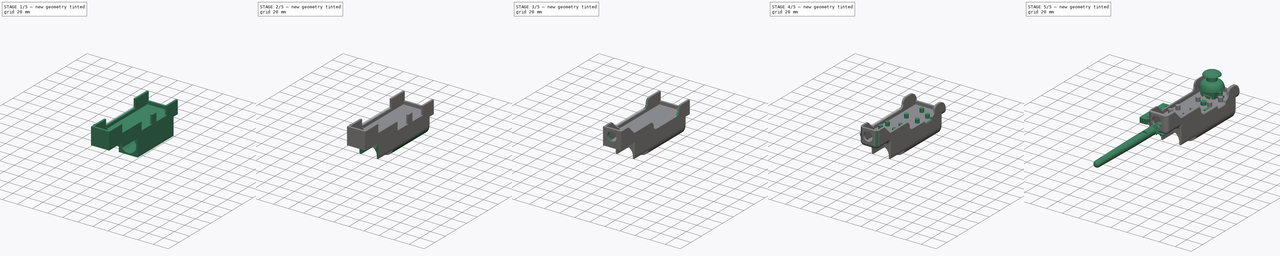
[diagram: build sequence overview — one tinted view per stage of 5, left to right]
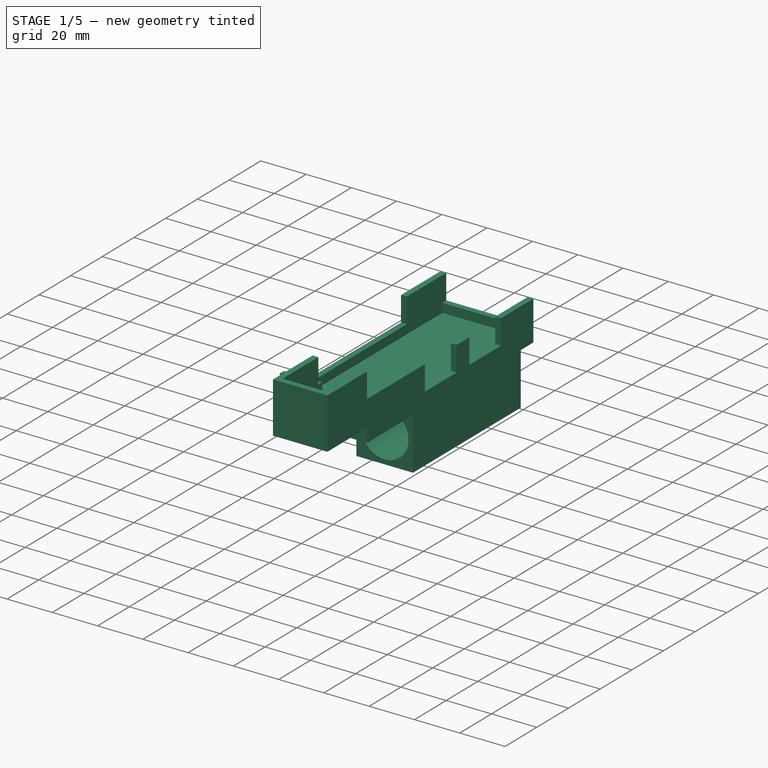
[diagram: stage 1 of 5 — iso view after this stage's code; geometry added in this stage tinted green]
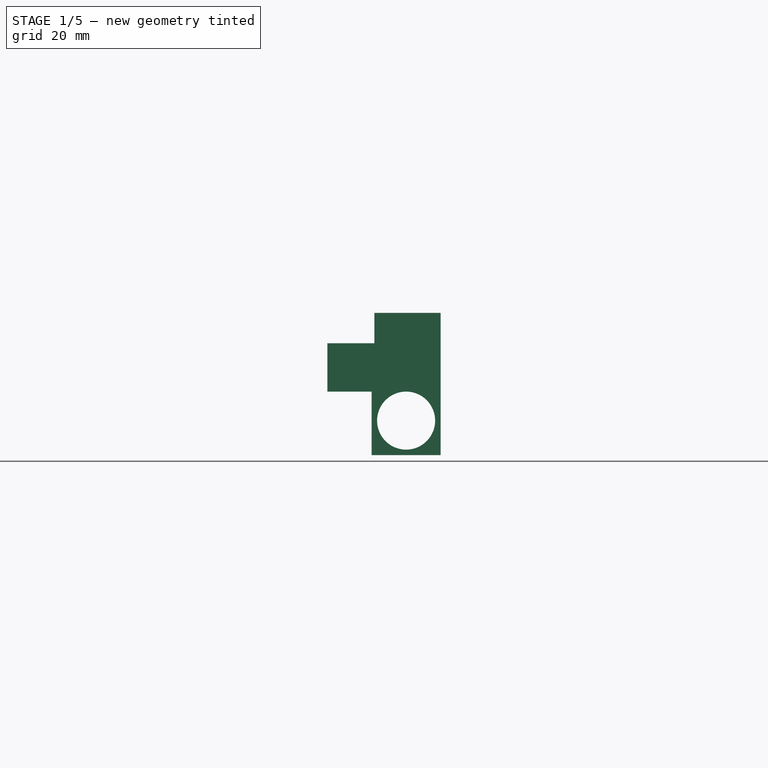
[diagram: stage 1 of 5 — front view after this stage's code; geometry added in this stage tinted green]
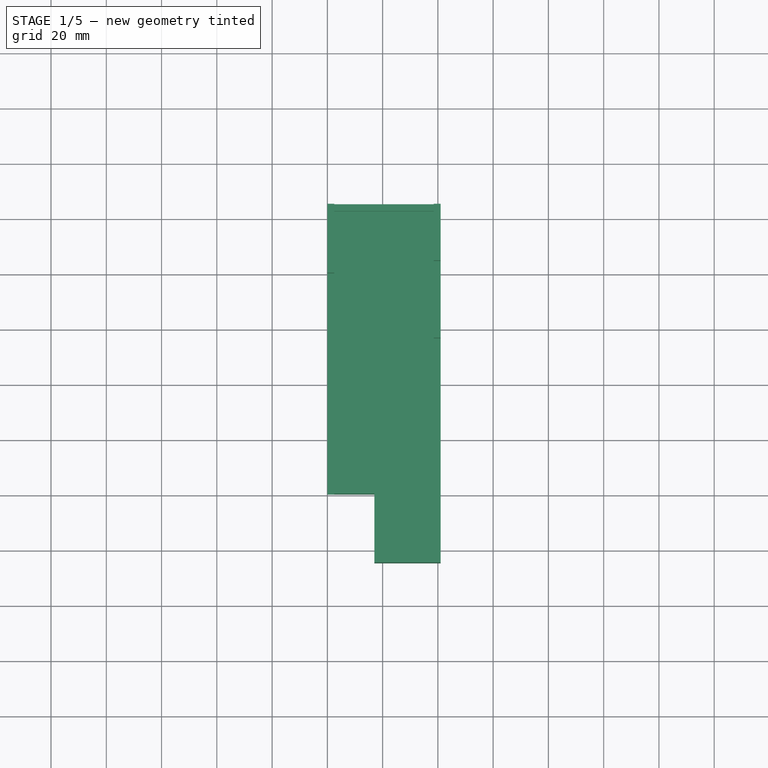
[diagram: stage 1 of 5 — top view after this stage's code; geometry added in this stage tinted green]
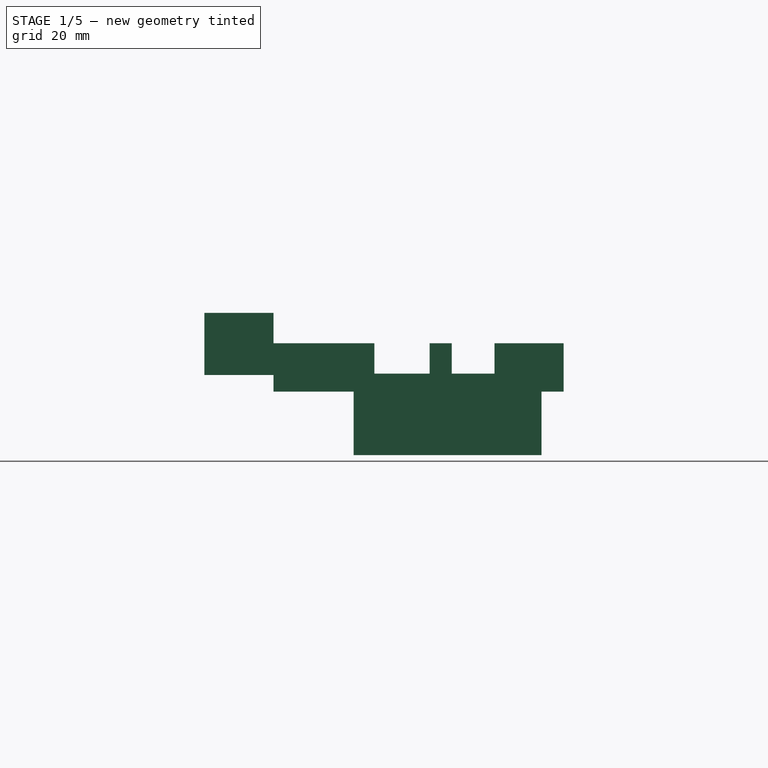
[diagram: stage 1 of 5 — right view after this stage's code; geometry added in this stage tinted green]
FCSTD DOCUMENT  (FreeCAD 0.19R)
Label: Transmitter Case V2
License: All rights reserved
LicenseURL: http://en.wikipedia.org/wiki/All_rights_reserved
objects: App::Link×54, Part::Feature×26, PartDesign::Fillet×21, Sketcher::SketchObject×14, App::Part×9, PartDesign::Pad×9, PartDesign::Pocket×9, PartDesign::Chamfer×2, PartDesign::CoordinateSystem×1, Part::MultiFuse×1, PartDesign::Body×1
note: 125 computed .brp shape members not serialized (recipe doc carries the construction recipe); baked Part::Feature solids carry a one-line shape summary decoded from their .brp

FEATURE [Sketcher::SketchObject] Sketch
  FullyConstrained = true
  MapMode = 5
  Support = -> [XY_Plane]
  sketch-geometry (4):
    g0: LineSegment StartX=0 StartY=0 StartZ=0 EndX=41 EndY=0 EndZ=0
    g1: LineSegment StartX=41 StartY=0 StartZ=0 EndX=41 EndY=105 EndZ=0
    g2: LineSegment StartX=41 StartY=105 StartZ=0 EndX=0 EndY=105 EndZ=0
    g3: LineSegment StartX=0 StartY=105 StartZ=0 EndX=0 EndY=0 EndZ=0
  constraints (11):
    c: Coincident(g0,g1)
    c: Coincident(g1,g2)
    c: Coincident(g2,g3)
    c: Coincident(g3,g0)
    c: Horizontal(g0)
    c: Horizontal(g2)
    c: Vertical(g1)
    c: Vertical(g3)
    c: Coincident(g0,g-1)
    c: Distance(g2) = 41
    c: Distance(g1) = 105
FEATURE [PartDesign::Pad] Pad
  Direction = (1,1,1)
  Length = 2.5
  Length2 = 100
  Profile = -> Sketch
  Type = 0
FEATURE [Sketcher::SketchObject] Sketch001
  ExternalGeometry = -> [Pad]
  FullyConstrained = true
  MapMode = 5
  Placement = pos=(0,0,2.5) rot=(0,0,1;0rad)
  Support = -> [Pad]
  sketch-geometry (8):
    g0: LineSegment StartX=0 StartY=105 StartZ=0 EndX=41 EndY=105 EndZ=0
    g1: LineSegment StartX=41 StartY=105 StartZ=0 EndX=41 EndY=0 EndZ=0
    g2: LineSegment StartX=41 StartY=0 StartZ=0 EndX=0 EndY=0 EndZ=0
    g3: LineSegment StartX=0 StartY=0 StartZ=0 EndX=0 EndY=105 EndZ=0
    g4: LineSegment StartX=2.5 StartY=102.5 StartZ=0 EndX=38.5 EndY=102.5 EndZ=0
    g5: LineSegment StartX=38.5 StartY=102.5 StartZ=0 EndX=38.5 EndY=2.5 EndZ=0
    g6: LineSegment StartX=38.5 StartY=2.5 StartZ=0 EndX=2.5 EndY=2.5 EndZ=0
    g7: LineSegment StartX=2.5 StartY=2.5 StartZ=0 EndX=2.5 EndY=102.5 EndZ=0
  constraints (22):
    c: Coincident(g0,g1)
    c: Coincident(g1,g2)
    c: Coincident(g2,g3)
    c: Coincident(g3,g0)
    c: Horizontal(g0)
    c: Horizontal(g2)
    c: Vertical(g1)
    c: Vertical(g3)
    c: Coincident(g0,g-3)
    c: Coincident(g1,g-4)
    c: Coincident(g4,g5)
    c: Coincident(g5,g6)
    c: Coincident(g6,g7)
    c: Coincident(g7,g4)
    c: Horizontal(g4)
    c: Horizontal(g6)
    c: Vertical(g5)
    c: Vertical(g7)
    c: Distance(g4,g1) = 2.5
    c: Distance(g4,g0) = 2.5
    c: Distance(g6,g2) = 2.5
    c: Distance(g6,g3) = 2.5
FEATURE [PartDesign::Pad] Pad001
  BaseFeature = -> Pad
  Direction = (1,1,1)
  Length = 15
  Length2 = 100
  Profile = -> Sketch001
  Type = 0
FEATURE [Sketcher::SketchObject] Sketch002
  AttachmentOffset = pos=(0,0,-6) rot=(0,0,1;0rad)
  ExternalGeometry = -> [Pad001]
  FullyConstrained = true
  MapMode = 5
  Placement = pos=(0,0,6) rot=(1,0,0;3.14159rad)
  Support = -> [Pad001]
  sketch-geometry (4):
    g0: LineSegment StartX=17 StartY=0 StartZ=0 EndX=41 EndY=0 EndZ=0
    g1: LineSegment StartX=41 StartY=0 StartZ=0 EndX=41 EndY=25 EndZ=0
    g2: LineSegment StartX=41 StartY=25 StartZ=0 EndX=17 EndY=25 EndZ=0
    g3: LineSegment StartX=17 StartY=25 StartZ=0 EndX=17 EndY=0 EndZ=0
  constraints (11):
    c: Coincident(g0,g1)
    c: Coincident(g1,g2)
    c: Coincident(g2,g3)
    c: Coincident(g3,g0)
    c: Horizontal(g0)
    c: Horizontal(g2)
    c: Vertical(g1)
    c: Vertical(g3)
    c: Coincident(g0,g-3)
    c: Distance(g0) = 24
    c: Distance(g1) = 25
FEATURE [PartDesign::Pad] Pad002
  BaseFeature = -> Pad001
  Direction = (1,1,1)
  Length = 2.5
  Length2 = 100
  Profile = -> Sketch002
  Reversed = true
  Type = 0
FEATURE [Sketcher::SketchObject] Sketch003
  ExternalGeometry = -> [Pad002]
  FullyConstrained = true
  MapMode = 5
  Placement = pos=(0,0,8.5) rot=(0,0,1;0rad)
  Support = -> [Pad002]
  sketch-geometry (8):
    g0: LineSegment StartX=41 StartY=0 StartZ=0 EndX=41 EndY=-25 EndZ=0
    g1: LineSegment StartX=41 StartY=-25 StartZ=0 EndX=17 EndY=-25 EndZ=0
    g2: LineSegment StartX=17 StartY=-25 StartZ=0 EndX=17 EndY=0 EndZ=0
    g3: LineSegment StartX=38.5 StartY=0 StartZ=0 EndX=38.5 EndY=-22.5 EndZ=0
    g4: LineSegment StartX=38.5 StartY=-22.5 StartZ=0 EndX=19.5 EndY=-22.5 EndZ=0
    g5: LineSegment StartX=19.5 StartY=-22.5 StartZ=0 EndX=19.5 EndY=0 EndZ=0
    g6: LineSegment StartX=19.5 StartY=0 StartZ=0 EndX=17 EndY=0 EndZ=0
    g7: LineSegment StartX=38.5 StartY=0 StartZ=0 EndX=41 EndY=0 EndZ=0
  constraints (22):
    c: Coincident(g0,g1)
    c: Coincident(g1,g2)
    c: Horizontal(g1)
    c: Vertical(g0)
    c: Vertical(g2)
    c: Coincident(g0,g-5)
    c: Coincident(g3,g4)
    c: Coincident(g4,g5)
    c: Horizontal(g4)
    c: Vertical(g3)
    c: Vertical(g5)
    c: PointOnObject(g5,g-1)
    c: Distance(g3,g0) = 2.5
    c: Distance(g3,g1) = 2.5
    c: Distance(g4,g2) = 2.5
    c: Coincident(g2,g-3)
    c: PointOnObject(g3,g-1)
    c: Coincident(g6,g5)
    c: Coincident(g6,g2)
    c: Coincident(g7,g3)
    c: Coincident(g7,g0)
    c: Horizontal(g7)
FEATURE [PartDesign::Pad] Pad003
  BaseFeature = -> Pad002
  Direction = (1,1,1)
  Length = 20
  Length2 = 100
  Profile = -> Sketch003
  Type = 0
FEATURE [Sketcher::SketchObject] Sketch004
  ExternalGeometry = -> [Pad003]
  FullyConstrained = true
  MapMode = 5
  Placement = pos=(0,0,17.5) rot=(0,0,1;0rad)
  Support = -> [Pad003]
  sketch-geometry (20):
    g0: LineSegment StartX=0 StartY=80 StartZ=0 EndX=2.5 EndY=80 EndZ=0
    g1: LineSegment StartX=2.5 StartY=80 StartZ=0 EndX=2.5 EndY=0 EndZ=0
    g2: LineSegment StartX=2.5 StartY=0 StartZ=0 EndX=0 EndY=0 EndZ=0
    g3: LineSegment StartX=0 StartY=0 StartZ=0 EndX=0 EndY=80 EndZ=0
    g4: LineSegment StartX=2.5 StartY=102.5 StartZ=0 EndX=38.5 EndY=102.5 EndZ=0
    g5: LineSegment StartX=38.5 StartY=102.5 StartZ=0 EndX=38.5 EndY=105 EndZ=0
    g6: LineSegment StartX=38.5 StartY=105 StartZ=0 EndX=2.5 EndY=105 EndZ=0
    g7: LineSegment StartX=2.5 StartY=105 StartZ=0 EndX=2.5 EndY=102.5 EndZ=0
    g8: LineSegment StartX=38.5 StartY=80.5 StartZ=0 EndX=41 EndY=80.5 EndZ=0
    g9: LineSegment StartX=41 StartY=80.5 StartZ=0 EndX=41 EndY=64.5 EndZ=0
    g10: LineSegment StartX=41 StartY=64.5 StartZ=0 EndX=38.5 EndY=64.5 EndZ=0
    g11: LineSegment StartX=38.5 StartY=64.5 StartZ=0 EndX=38.5 EndY=80.5 EndZ=0
    g12: LineSegment StartX=38.5 StartY=56.5 StartZ=0 EndX=41 EndY=56.5 EndZ=0
    g13: LineSegment StartX=41 StartY=56.5 StartZ=0 EndX=41 EndY=36.5 EndZ=0
    g14: LineSegment StartX=41 StartY=36.5 StartZ=0 EndX=38.5 EndY=36.5 EndZ=0
    g15: LineSegment StartX=38.5 StartY=36.5 StartZ=0 EndX=38.5 EndY=56.5 EndZ=0
    g16: LineSegment StartX=38.5 StartY=0 StartZ=0 EndX=19.5 EndY=0 EndZ=0
    g17: LineSegment StartX=19.5 StartY=0 StartZ=0 EndX=19.5 EndY=2.5 EndZ=0
    g18: LineSegment StartX=19.5 StartY=2.5 StartZ=0 EndX=38.5 EndY=2.5 EndZ=0
    g19: LineSegment StartX=38.5 StartY=2.5 StartZ=0 EndX=38.5 EndY=0 EndZ=0
  constraints (55):
    c: Coincident(g0,g1)
    c: Coincident(g1,g2)
    c: Coincident(g2,g3)
    c: Coincident(g3,g0)
    c: Horizontal(g0)
    c: Horizontal(g2)
    c: Vertical(g1)
    c: Vertical(g3)
    c: PointOnObject(g0,g-4)
    c: PointOnObject(g1,g-5)
    c: PointOnObject(g-3,g1)
    c: Distance(g1) = 80
    c: Coincident(g4,g5)
    c: Coincident(g5,g6)
    c: Coincident(g6,g7)
    c: Coincident(g7,g4)
    c: Horizontal(g6)
    c: Vertical(g5)
    c: Vertical(g7)
    c: Coincident(g4,g-6)
    c: PointOnObject(g5,g-7)
    c: Coincident(g4,g-6)
    c: Coincident(g8,g9)
    c: Coincident(g9,g10)
    c: Coincident(g10,g11)
    c: Coincident(g11,g8)
    c: Horizontal(g8)
    c: Horizontal(g10)
    c: Vertical(g9)
    c: Vertical(g11)
    c: PointOnObject(g8,g-8)
    c: PointOnObject(g9,g-9)
    c: Distance(g9) = 16
    c: Distance(g8,g-9) = 24.5
    c: Coincident(g12,g13)
    c: Coincident(g13,g14)
    c: Coincident(g14,g15)
    c: Coincident(g15,g12)
    c: Horizontal(g12)
    c: Horizontal(g14)
    c: Vertical(g13)
    c: Vertical(g15)
    c: PointOnObject(g12,g-8)
    c: PointOnObject(g13,g-9)
    c: Distance(g13) = 20
    c: Distance(g12,g9) = 8
    c: Coincident(g16,g17)
    c: Coincident(g17,g18)
    c: Coincident(g18,g19)
    c: Coincident(g19,g16)
    c: Horizontal(g18)
    c: Vertical(g17)
    c: Coincident(g16,g-12)
    c: Coincident(g-8,g18)
    c: Coincident(g16,g-10)
FEATURE [Part::Feature] Part__Feature008  label="18650 v4"
  shape: bbox 19.73 x 19.73 x 65 mm, 20 faces (baked)
FEATURE [Part::Feature] Part__Feature009  label="18650 v005"
  shape: bbox 14 x 14 x 0.1 mm, 4 faces (baked)
FEATURE [Part::Feature] Part__Feature010  label="18650 v006"
  shape: bbox 12.02 x 12.02 x 2.321 mm, 37 faces (baked)
FEATURE [Part::Feature] Part__Feature011  label="18650 v007"
  shape: bbox 17 x 17 x 62.7 mm, 3 faces (baked)
FEATURE [App::Part] _8650_v4  label="18650 v008"
  Group = -> [Part__Feature008,Part__Feature009,Part__Feature010,Part__Feature011]
  Origin = -> Origin009
  Placement = pos=(26,92,-19) rot=(-1,0,0;4.71239rad)
FEATURE [PartDesign::Pocket] Pocket
  BaseFeature = -> Pad003
  Length = 11
  Length2 = 100
  Profile = -> Sketch004
  Type = 0
FEATURE [PartDesign::Pocket] Pocket001
  BaseFeature = -> Pocket
  Length = 4
  Length2 = 100
  Profile = -> Pocket [Face27]
  Type = 0
FEATURE [PartDesign::Pad] Pad004
  BaseFeature = -> Pocket001
  Direction = (1,1,1)
  Length = 2
  Length2 = 100
  Profile = -> Pocket001 [Face45]
  Refine = true
  Type = 0
FEATURE [Sketcher::SketchObject] Sketch005
  AttachmentOffset = pos=(0,0,-8) rot=(0,0,1;0rad)
  ExternalGeometry = -> [Pad004]
  FullyConstrained = true
  MapMode = 5
  Placement = pos=(0,97,1.8e-15) rot=(0,0.707107,0.707107;3.14159rad)
  Support = -> [Pad004]
  sketch-geometry (8):
    g0: Circle CenterX=-28.5 CenterY=-10.5 CenterZ=0 NormalX=0 NormalY=0 NormalZ=1 AngleXU=0 Radius=10.5
    g1: LineSegment StartX=-41 StartY=0.2 StartZ=0 EndX=-41 EndY=-23 EndZ=0
    g2: LineSegment StartX=-41 StartY=-23 StartZ=0 EndX=-16 EndY=-23 EndZ=0
    g3: LineSegment StartX=-16 StartY=-23 StartZ=0 EndX=-16 EndY=0.2 EndZ=0
    g4: LineSegment StartX=-18 StartY=-10.5 StartZ=0 EndX=-16 EndY=-10.5 EndZ=0
    g5: LineSegment StartX=-41 StartY=-10.5 StartZ=0 EndX=-39 EndY=-10.5 EndZ=0
    g6: LineSegment StartX=-28.5 StartY=-21 StartZ=0 EndX=-28.5 EndY=-23 EndZ=0
    g7: LineSegment StartX=-41 StartY=0.2 StartZ=0 EndX=-16 EndY=0.2 EndZ=0
  constraints (27):
    c: Diameter(g0) = 21
    c: Tangent(g-3,g0)
    c: Vertical(g1)
    c: Coincident(g2,g1)
    c: Horizontal(g2)
    c: Coincident(g3,g2)
    c: Vertical(g3)
    c: PointOnObject(g4,g0)
    c: PointOnObject(g4,g3)
    c: Horizontal(g4)
    c: Perpendicular(g0,g4)
    c: PointOnObject(g5,g1)
    c: PointOnObject(g5,g0)
    c: Horizontal(g5)
    c: Perpendicular(g0,g5)
    c: Distance(g5) = 2
    c: PointOnObject(g6,g0)
    c: PointOnObject(g6,g2)
    c: Vertical(g6)
    c: Perpendicular(g0,g6)
    c: Equal(g4,g6)
    c: Equal(g6,g5)
    c: Coincident(g7,g3)
    c: Coincident(g1,g7)
    c: Vertical(g1,g-3)
    c: Horizontal(g7)
    c: Distance(g1,g-3) = 0.2
FEATURE [PartDesign::Pad] Pad005
  BaseFeature = -> Pad004
  Direction = (1,1,1)
  Length = 68
  Length2 = 100
  Profile = -> Sketch005
  Reversed = true
  Type = 0
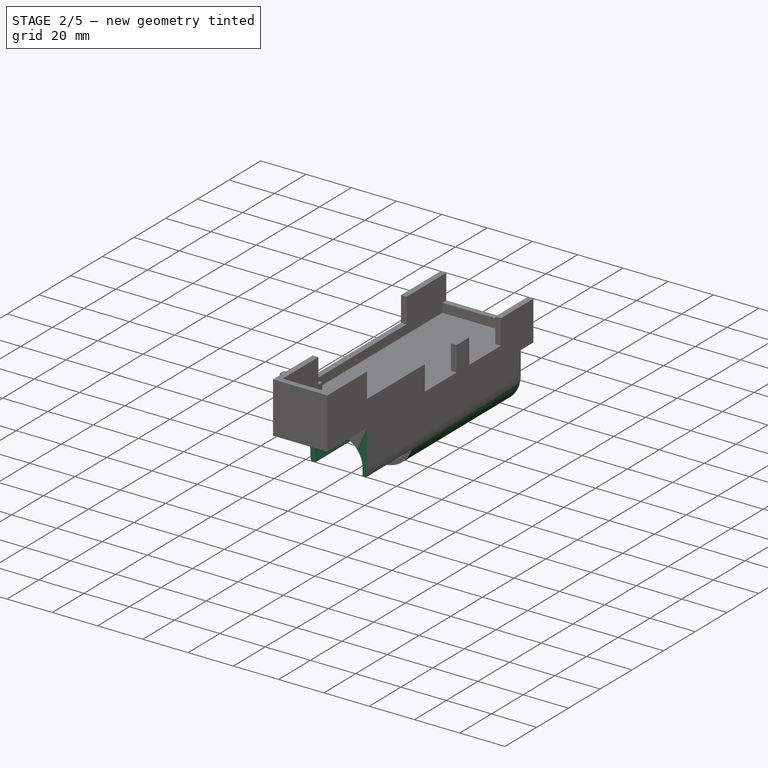
[diagram: stage 2 of 5 — iso view after this stage's code; geometry added in this stage tinted green]
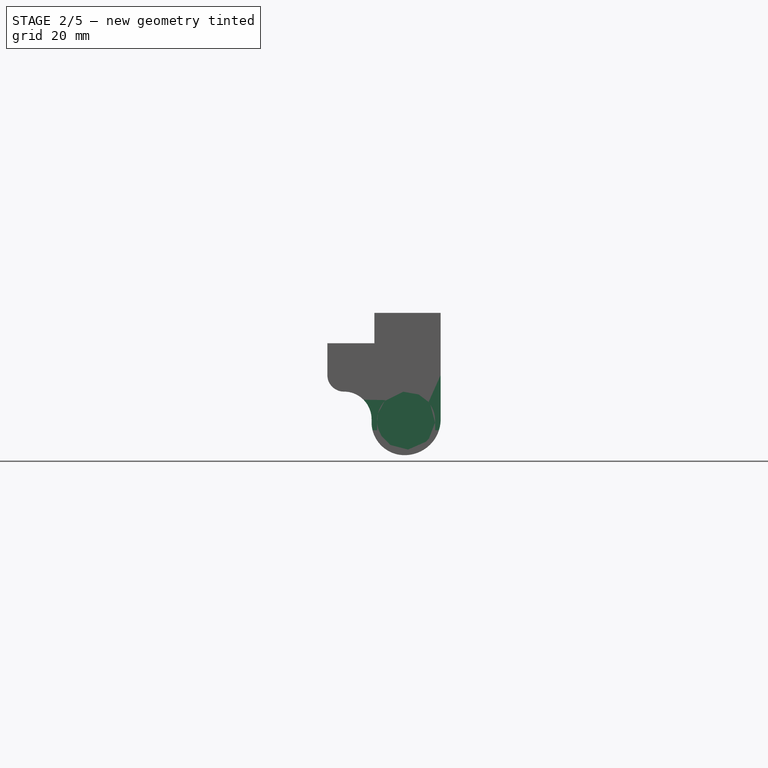
[diagram: stage 2 of 5 — front view after this stage's code; geometry added in this stage tinted green]
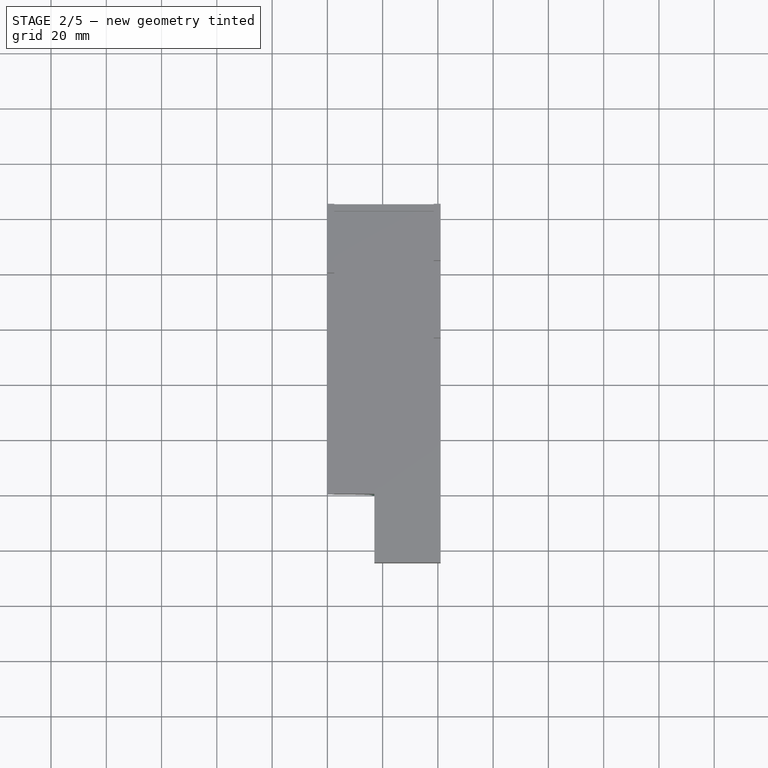
[diagram: stage 2 of 5 — top view after this stage's code; geometry added in this stage tinted green]
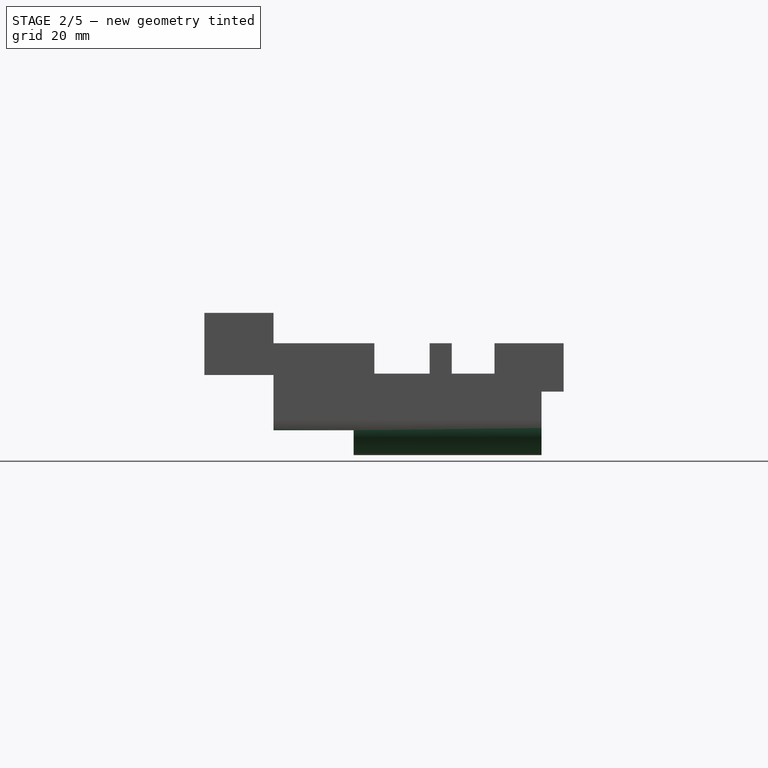
[diagram: stage 2 of 5 — right view after this stage's code; geometry added in this stage tinted green]
FEATURE [Sketcher::SketchObject] Sketch006
  ExternalGeometry = -> [Sketch005]
  FullyConstrained = true
  MapMode = 5
  Placement = pos=(0,97,0) rot=(0,0.707107,0.707107;3.14159rad)
  Support = -> [Pad005]
  sketch-geometry (4):
    g0: LineSegment StartX=-41 StartY=-23 StartZ=0 EndX=-16 EndY=-23 EndZ=0
    g1: LineSegment StartX=-16 StartY=-23 StartZ=0 EndX=-16 EndY=0.2 EndZ=0
    g2: LineSegment StartX=-16 StartY=0.2 StartZ=0 EndX=-41 EndY=0.2 EndZ=0
    g3: LineSegment StartX=-41 StartY=0.2 StartZ=0 EndX=-41 EndY=-23 EndZ=0
  constraints (10):
    c: Coincident(g0,g1)
    c: Coincident(g1,g2)
    c: Coincident(g2,g3)
    c: Coincident(g3,g0)
    c: Horizontal(g0)
    c: Horizontal(g2)
    c: Vertical(g1)
    c: Vertical(g3)
    c: Coincident(g0,g-4)
    c: Coincident(g1,g-3)
FEATURE [PartDesign::Pad] Pad006
  BaseFeature = -> Pad005
  Direction = (1,1,1)
  Length = 2
  Length2 = 100
  Profile = -> Sketch006
  Refine = true
  Reversed = true
  Type = 0
FEATURE [Sketcher::SketchObject] Sketch007
  ExternalGeometry = -> [Pad006]
  FullyConstrained = true
  MapMode = 5
  Placement = pos=(0,0,0) rot=(1,0,0;3.14159rad)
  Support = -> [Pad006]
  sketch-geometry (8):
    g0: LineSegment StartX=41 StartY=-29 StartZ=0 EndX=41 EndY=0 EndZ=0
    g1: LineSegment StartX=41 StartY=0 StartZ=0 EndX=16 EndY=0 EndZ=0
    g2: LineSegment StartX=16 StartY=0 StartZ=0 EndX=16 EndY=-29 EndZ=0
    g3: LineSegment StartX=39 StartY=-29 StartZ=0 EndX=39 EndY=-2 EndZ=0
    g4: LineSegment StartX=39 StartY=-2 StartZ=0 EndX=18 EndY=-2 EndZ=0
    g5: LineSegment StartX=18 StartY=-2 StartZ=0 EndX=18 EndY=-29 EndZ=0
    g6: LineSegment StartX=39 StartY=-29 StartZ=0 EndX=41 EndY=-29 EndZ=0
    g7: LineSegment StartX=18 StartY=-29 StartZ=0 EndX=16 EndY=-29 EndZ=0
  constraints (22):
    c: Coincident(g0,g1)
    c: Coincident(g1,g2)
    c: Horizontal(g1)
    c: Vertical(g0)
    c: Vertical(g2)
    c: Coincident(g3,g4)
    c: Coincident(g4,g5)
    c: Horizontal(g4)
    c: Vertical(g3)
    c: Vertical(g5)
    c: Distance(g5,g2) = 2
    c: Distance(g3,g0) = 2
    c: Coincident(g6,g3)
    c: Coincident(g6,g0)
    c: Coincident(g7,g2)
    c: Coincident(g5,g7)
    c: Horizontal(g7)
    c: Horizontal(g6)
    c: Horizontal(g3,g5)
    c: Coincident(g2,g-3)
    c: Distance(g3,g1) = 2
    c: Coincident(g0,g-4)
FEATURE [PartDesign::Pad] Pad007
  BaseFeature = -> Pad006
  Direction = (1,1,1)
  Length = 14
  Length2 = 100
  Profile = -> Sketch007
  Type = 0
FEATURE [Sketcher::SketchObject] Sketch008
  ExternalGeometry = -> [Pad007]
  FullyConstrained = true
  MapMode = 5
  Placement = pos=(0,0,0) rot=(1,0,0;1.5708rad)
  Support = -> [Pad007]
  sketch-geometry (1):
    g0: Circle CenterX=28.5 CenterY=-10.5 CenterZ=0 NormalX=0 NormalY=0 NormalZ=1 AngleXU=0 Radius=10.5
  constraints (2):
    c: Coincident(g0,g-4)
    c: PointOnObject(g-4,g0)
FEATURE [PartDesign::Pocket] Pocket002
  BaseFeature = -> Pad007
  Length = 2
  Length2 = 100
  Profile = -> Sketch008
  Type = 0
FEATURE [PartDesign::Pocket] Pocket003
  BaseFeature = -> Pocket002
  Length = 5
  Length2 = 100
  Profile = -> Pocket002 [Face49]
  Type = 0
FEATURE [PartDesign::Pocket] Pocket004
  BaseFeature = -> Pocket003
  Length = 5
  Length2 = 100
  Profile = -> Pocket003 [Face51]
  Refine = true
  Type = 0
FEATURE [PartDesign::Fillet] Fillet
  Base = -> Pocket004 [Edge49]
  BaseFeature = -> Pocket004
  Radius = 13
  SupportTransform = false
FEATURE [PartDesign::Fillet] Fillet001
  Base = -> Fillet [Edge31]
  BaseFeature = -> Fillet
  Radius = 11.9
  SupportTransform = false
FEATURE [PartDesign::Fillet] Fillet002
  Base = -> Fillet001 [Edge18]
  BaseFeature = -> Fillet001
  Radius = 10
  SupportTransform = false
FEATURE [PartDesign::Fillet] Fillet003
  Base = -> Fillet002 [Edge19]
  BaseFeature = -> Fillet002
  Radius = 6
  SupportTransform = false
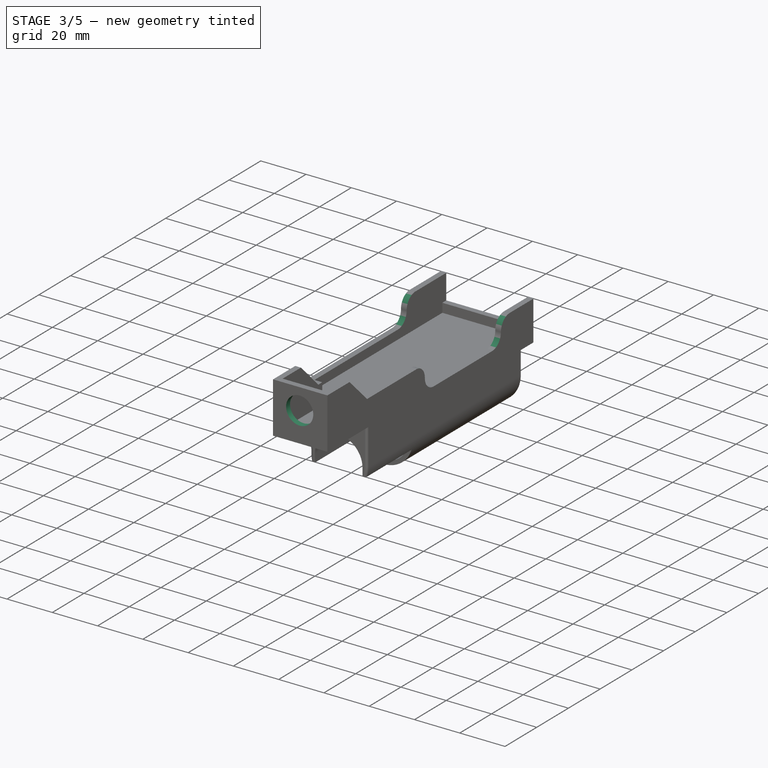
[diagram: stage 3 of 5 — iso view after this stage's code; geometry added in this stage tinted green]
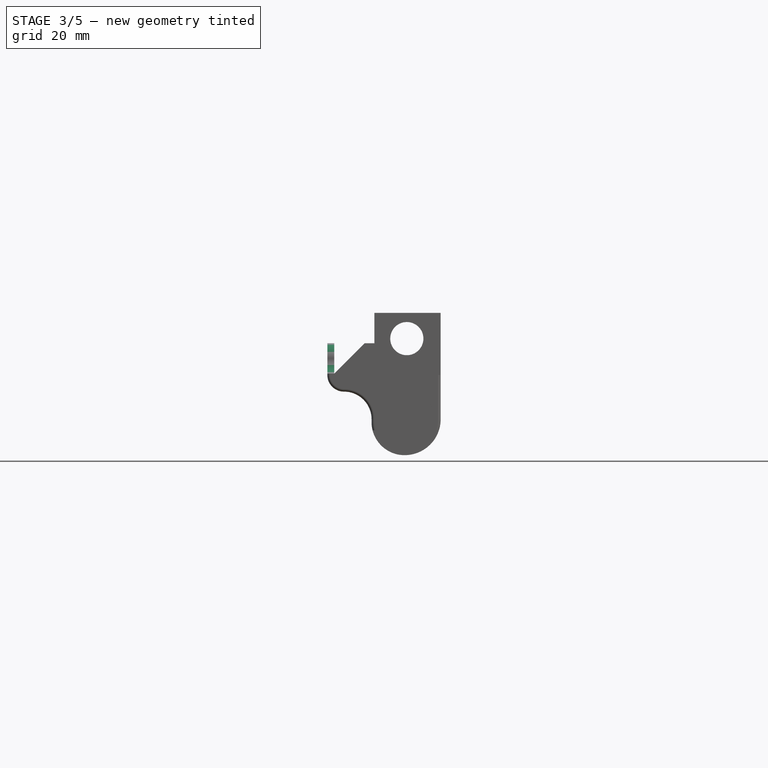
[diagram: stage 3 of 5 — front view after this stage's code; geometry added in this stage tinted green]
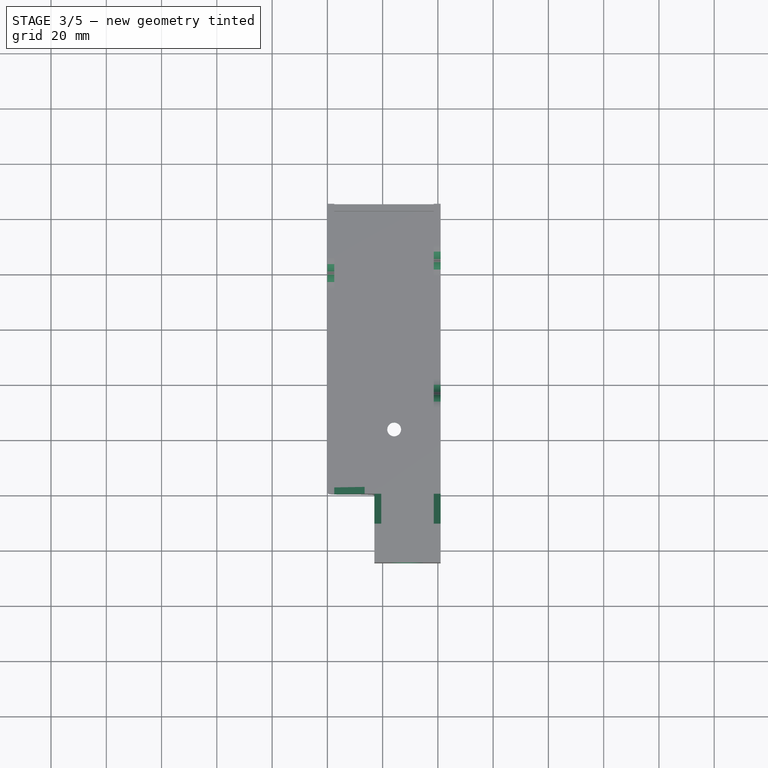
[diagram: stage 3 of 5 — top view after this stage's code; geometry added in this stage tinted green]
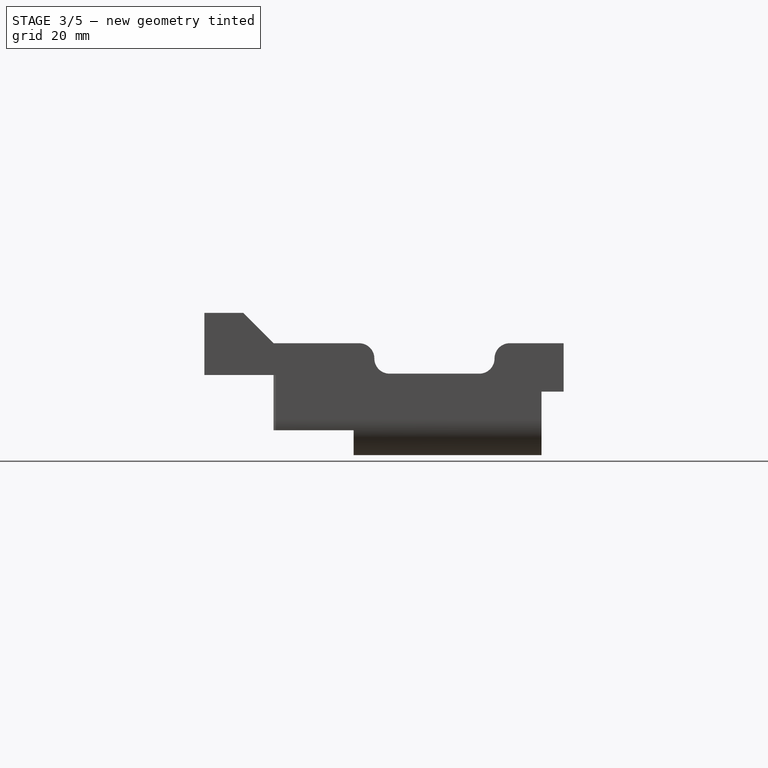
[diagram: stage 3 of 5 — right view after this stage's code; geometry added in this stage tinted green]
FEATURE [Sketcher::SketchObject] Sketch009
  FullyConstrained = false
  MapMode = 5
  Placement = pos=(0,0,2.5) rot=(0,0,1;0rad)
  Support = -> [Fillet003]
  sketch-geometry (1):
    g0: Circle CenterX=24.1785 CenterY=23.5672 CenterZ=0 NormalX=0 NormalY=0 NormalZ=1 AngleXU=0 Radius=2.5
  constraints (1):
    c: Diameter(g0) = 5
FEATURE [PartDesign::Pocket] Pocket005
  BaseFeature = -> Fillet003
  Length = 5
  Length2 = 100
  Profile = -> Sketch009
  Type = 0
FEATURE [PartDesign::Fillet] Fillet004
  Base = -> Pocket005 [Edge19]
  BaseFeature = -> Pocket005
  Radius = 1
  SupportTransform = false
FEATURE [PartDesign::Fillet] Fillet005
  Base = -> Fillet004 [Edge15]
  BaseFeature = -> Fillet004
  Radius = 1
  SupportTransform = false
FEATURE [Sketcher::SketchObject] Sketch010
  FullyConstrained = false
  MapMode = 5
  Placement = pos=(0,-25,0) rot=(1,0,0;1.5708rad)
  Support = -> [Fillet005]
  sketch-geometry (1):
    g0: Circle CenterX=28.76 CenterY=19.176 CenterZ=0 NormalX=0 NormalY=0 NormalZ=1 AngleXU=0 Radius=6
  constraints (1):
    c: Diameter(g0) = 12
FEATURE [PartDesign::Pocket] Pocket006
  BaseFeature = -> Fillet005
  Length = 5
  Length2 = 100
  Profile = -> Sketch010
  Type = 0
FEATURE [PartDesign::Chamfer] Chamfer
  Angle = 45
  Base = -> Pocket006 [Edge88,Edge95]
  BaseFeature = -> Pocket006
  ChamferType = 0
  FlipDirection = false
  Size = 10.99
  Size2 = 1
  SupportTransform = false
FEATURE [PartDesign::Pocket] Pocket007
  BaseFeature = -> Chamfer
  Length = 8
  Length2 = 100
  Profile = -> Chamfer [Face38]
  Refine = true
  Type = 0
FEATURE [PartDesign::Fillet] Fillet006
  Base = -> Pocket007 [Edge117,Edge116,Edge114,Edge115,Edge148,Edge81]
  BaseFeature = -> Pocket007
  Radius = 5.49
  SupportTransform = false
FEATURE [PartDesign::Chamfer] Chamfer001
  Angle = 45
  Base = -> Fillet006 [Edge152]
  BaseFeature = -> Fillet006
  ChamferType = 0
  FlipDirection = false
  Size = 10.99
  Size2 = 1
  SupportTransform = false
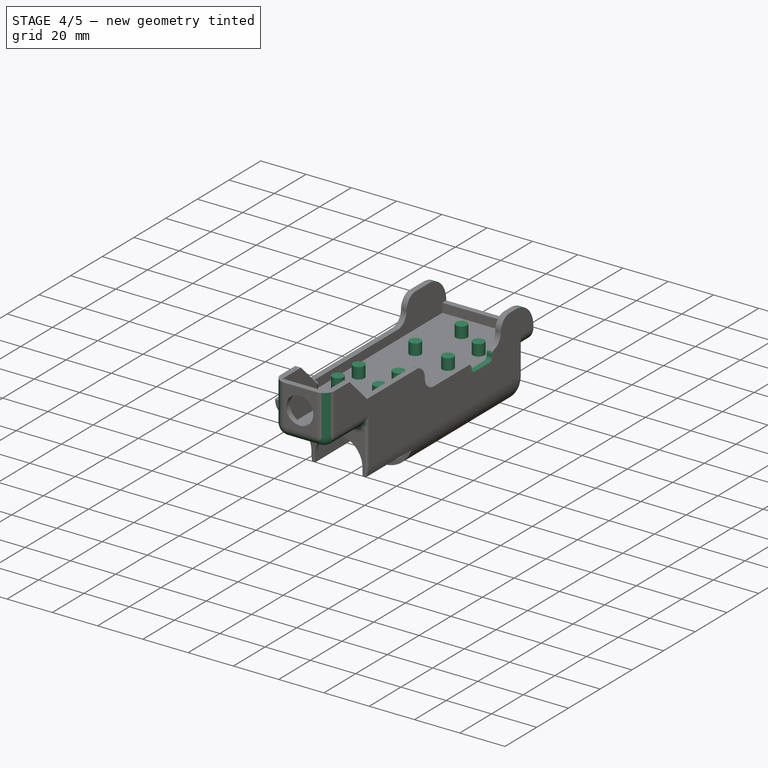
[diagram: stage 4 of 5 — iso view after this stage's code; geometry added in this stage tinted green]
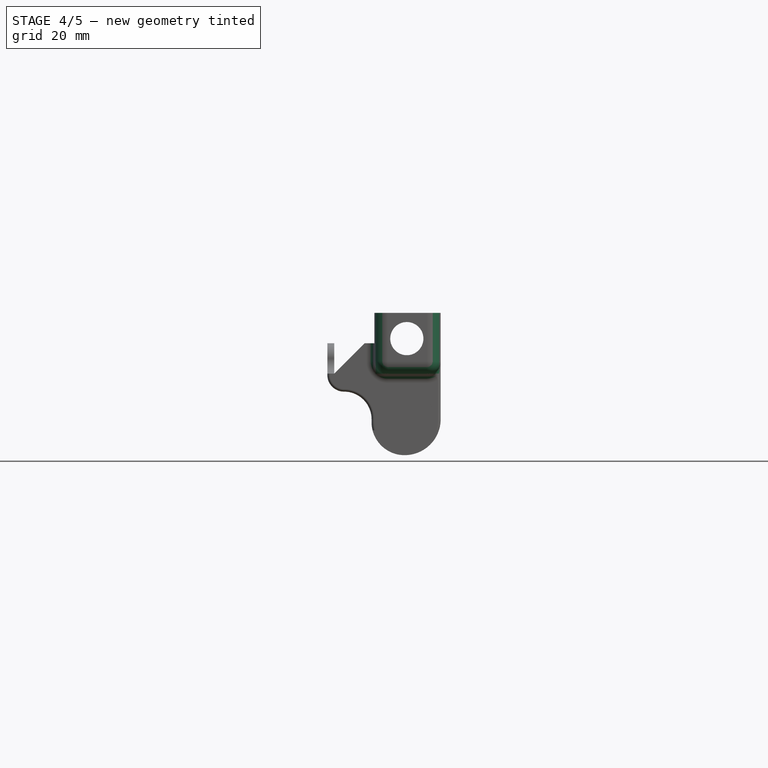
[diagram: stage 4 of 5 — front view after this stage's code; geometry added in this stage tinted green]
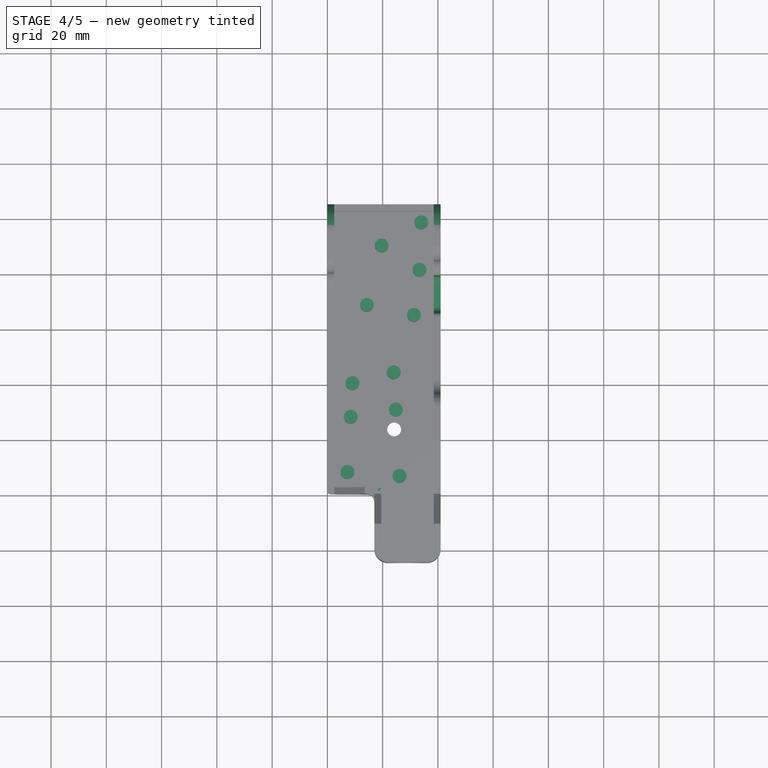
[diagram: stage 4 of 5 — top view after this stage's code; geometry added in this stage tinted green]
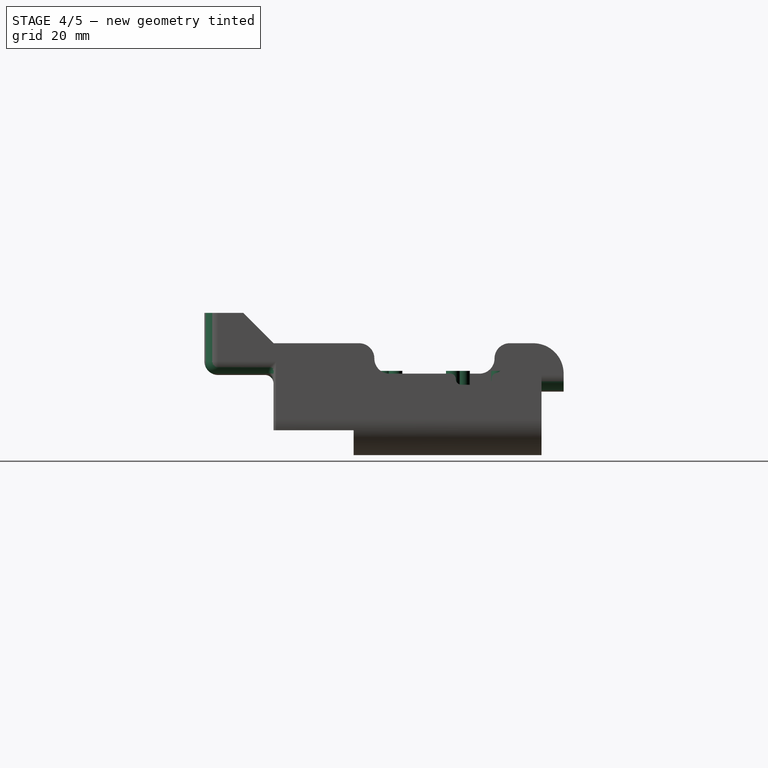
[diagram: stage 4 of 5 — right view after this stage's code; geometry added in this stage tinted green]
FEATURE [PartDesign::Fillet] Fillet007
  Base = -> Chamfer001 [Edge42,Edge38,Edge43,Edge36,Edge104]
  BaseFeature = -> Chamfer001
  Radius = 5
  Refine = true
  SupportTransform = false
FEATURE [PartDesign::Fillet] Fillet008
  Base = -> Fillet007 [Edge4]
  BaseFeature = -> Fillet007
  Radius = 3
  SupportTransform = false
FEATURE [PartDesign::Fillet] Fillet009
  Base = -> Fillet008 [Edge125]
  BaseFeature = -> Fillet008
  Radius = 6
  SupportTransform = false
FEATURE [PartDesign::Fillet] Fillet010
  Base = -> Fillet009 [Edge26]
  BaseFeature = -> Fillet009
  Radius = 11
  SupportTransform = false
FEATURE [PartDesign::Fillet] Fillet011
  Base = -> Fillet010 [Edge8]
  BaseFeature = -> Fillet010
  Radius = 11
  SupportTransform = false
FEATURE [Sketcher::SketchObject] Sketch011
  ExternalGeometry = -> [Fillet011]
  FullyConstrained = true
  MapMode = 5
  Placement = pos=(0,0,6.5) rot=(0,0,1;0rad)
  Support = -> [Fillet011]
  sketch-geometry (4):
    g0: LineSegment StartX=38.5 StartY=79.01 StartZ=0 EndX=41 EndY=79.01 EndZ=0
    g1: LineSegment StartX=41 StartY=79.01 StartZ=0 EndX=41 EndY=66.01 EndZ=0
    g2: LineSegment StartX=41 StartY=66.01 StartZ=0 EndX=38.5 EndY=66.01 EndZ=0
    g3: LineSegment StartX=38.5 StartY=66.01 StartZ=0 EndX=38.5 EndY=79.01 EndZ=0
  constraints (11):
    c: Coincident(g0,g1)
    c: Coincident(g1,g2)
    c: Coincident(g2,g3)
    c: Coincident(g3,g0)
    c: Horizontal(g0)
    c: Horizontal(g2)
    c: Vertical(g1)
    c: Vertical(g3)
    c: Coincident(g0,g-4)
    c: PointOnObject(g1,g-5)
    c: Distance(g1) = 13
FEATURE [PartDesign::Pocket] Pocket008
  BaseFeature = -> Fillet011
  Length = 4
  Length2 = 100
  Profile = -> Sketch011
  Type = 0
FEATURE [PartDesign::Fillet] Fillet012
  Base = -> Pocket008 [Edge99,Edge93,Edge95,Edge96]
  BaseFeature = -> Pocket008
  Radius = 1.99
  SupportTransform = false
FEATURE [PartDesign::Fillet] Fillet013
  Base = -> Fillet012 [Edge132]
  BaseFeature = -> Fillet012
  Radius = 4
  SupportTransform = false
FEATURE [Sketcher::SketchObject] Sketch012
  FullyConstrained = false
  MapMode = 5
  Placement = pos=(0,0,2.5) rot=(0,0,1;0rad)
  Support = -> [Fillet013]
  sketch-geometry (11):
    g0: Circle CenterX=26.118 CenterY=6.70345 CenterZ=0 NormalX=0 NormalY=0 NormalZ=1 AngleXU=0 Radius=2.5
    g1: Circle CenterX=7.25808 CenterY=8.11091 CenterZ=0 NormalX=0 NormalY=0 NormalZ=1 AngleXU=0 Radius=2.5
    g2: Circle CenterX=8.45442 CenterY=28.0968 CenterZ=0 NormalX=0 NormalY=0 NormalZ=1 AngleXU=0 Radius=2.5
    g3: Circle CenterX=9.0918 CenterY=40.2961 CenterZ=0 NormalX=0 NormalY=0 NormalZ=1 AngleXU=0 Radius=2.5
    g4: Circle CenterX=24.0137 CenterY=44.1728 CenterZ=0 NormalX=0 NormalY=0 NormalZ=1 AngleXU=0 Radius=2.5
    g5: Circle CenterX=24.7878 CenterY=30.7316 CenterZ=0 NormalX=0 NormalY=0 NormalZ=1 AngleXU=0 Radius=2.5
    g6: Circle CenterX=19.6518 CenterY=90.0995 CenterZ=0 NormalX=0 NormalY=0 NormalZ=1 AngleXU=0 Radius=2.5
    g7: Circle CenterX=34.0078 CenterY=98.4739 CenterZ=0 NormalX=0 NormalY=0 NormalZ=1 AngleXU=0 Radius=2.5
    g8: Circle CenterX=33.3745 CenterY=81.3029 CenterZ=0 NormalX=0 NormalY=0 NormalZ=1 AngleXU=0 Radius=2.5
    g9: Circle CenterX=31.3057 CenterY=64.9465 CenterZ=0 NormalX=0 NormalY=0 NormalZ=1 AngleXU=0 Radius=2.5
    g10: Circle CenterX=14.3034 CenterY=68.5654 CenterZ=0 NormalX=0 NormalY=0 NormalZ=1 AngleXU=0 Radius=2.5
  constraints (11):
    c: Equal(g8,g7)
    c: Equal(g7,g6)
    c: Equal(g6,g10)
    c: Equal(g10,g9)
    c: Equal(g9,g4)
    c: Equal(g4,g3)
    c: Equal(g3,g2)
    c: Equal(g2,g5)
    c: Equal(g5,g0)
    c: Equal(g0,g1)
    c: Diameter(g0) = 5
FEATURE [PartDesign::Pad] Pad008
  BaseFeature = -> Fillet013
  Direction = (1,1,1)
  Length = 5
  Length2 = 100
  Profile = -> Sketch012
  Type = 0
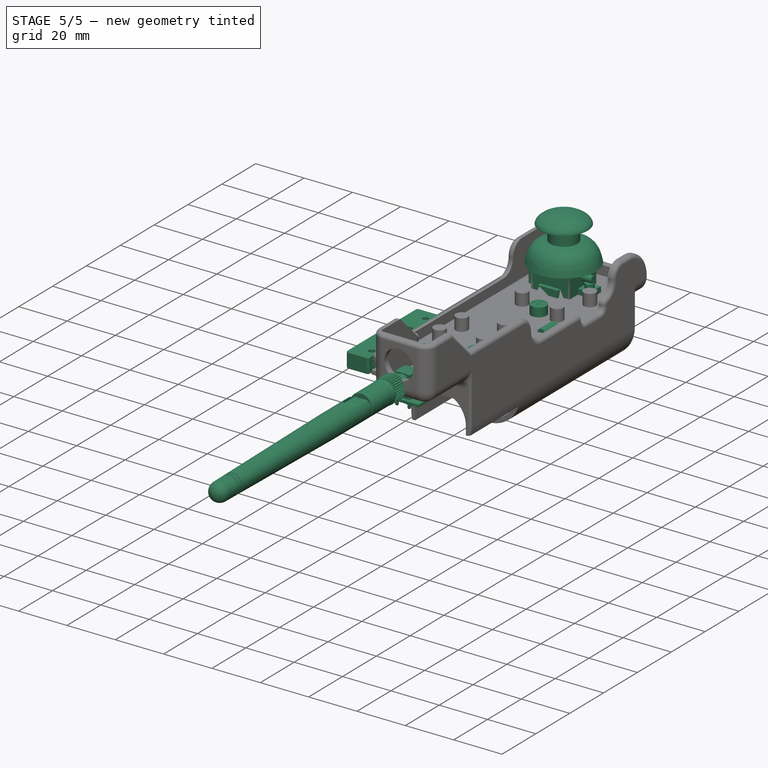
[diagram: stage 5 of 5 — iso view after this stage's code; geometry added in this stage tinted green]
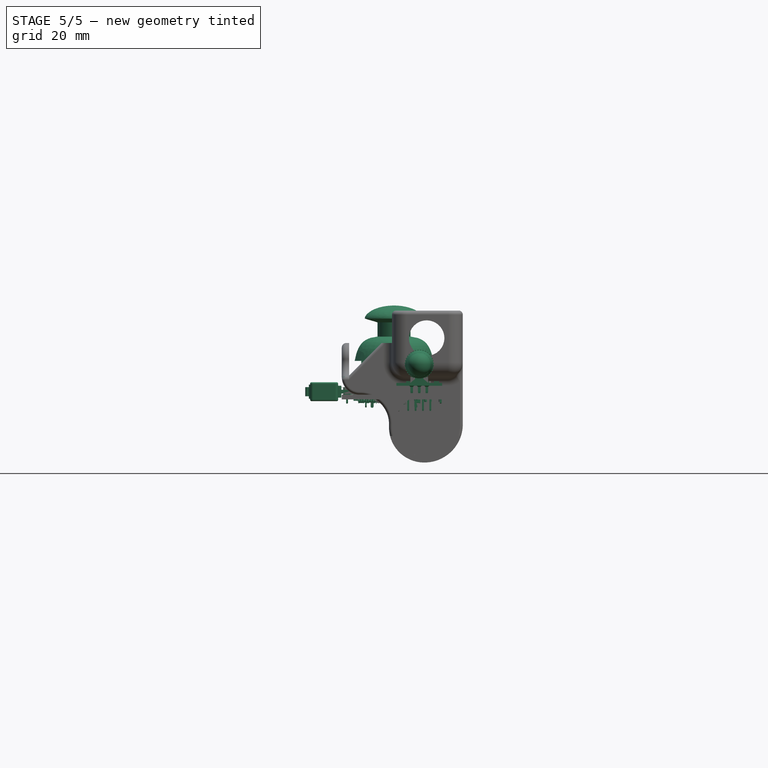
[diagram: stage 5 of 5 — front view after this stage's code; geometry added in this stage tinted green]
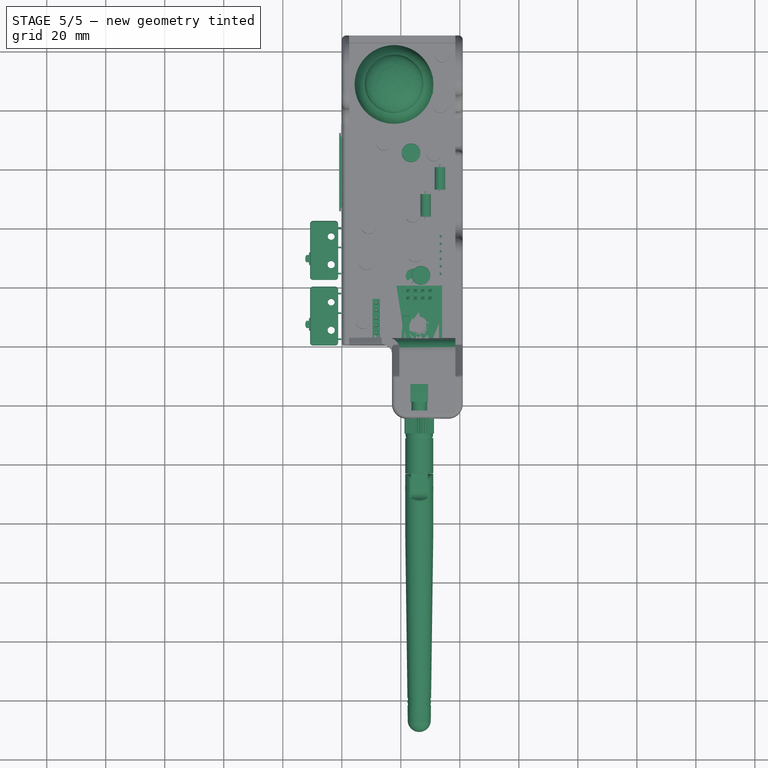
[diagram: stage 5 of 5 — top view after this stage's code; geometry added in this stage tinted green]
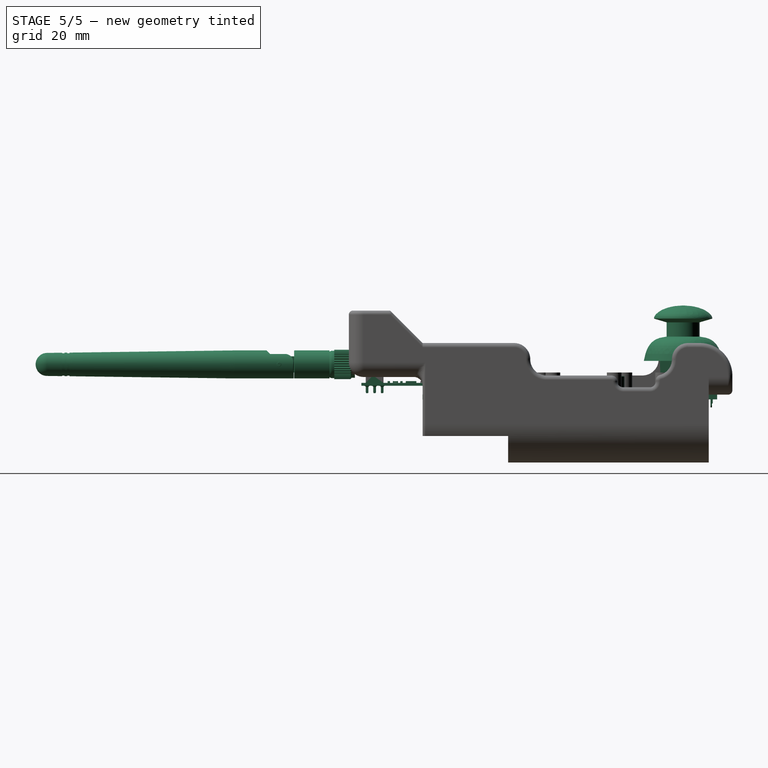
[diagram: stage 5 of 5 — right view after this stage's code; geometry added in this stage tinted green]
FEATURE [PartDesign::CoordinateSystem] Local_CS_7c49
  AttacherType = Attacher::AttachEngine3D
FEATURE [Part::Feature] Pcb_7c49
  Placement = pos=(-125.222,136.144,0) rot=(0,0,1;0rad)
  shape: bbox 35.57 x 99.82 x 1.6 mm, 74 faces (baked)
FEATURE [Sketcher::SketchObject] PCB_Sketch_7c49
  FullyConstrained = false
  sketch-geometry (5):
    g0: LineSegment StartX=-0.762 StartY=99.314 StartZ=0 EndX=34.798 EndY=99.314 EndZ=0
    g1: LineSegment StartX=34.804 StartY=73.996 StartZ=0 EndX=34.798 EndY=99.314 EndZ=0
    g2: LineSegment StartX=34.798 StartY=-0.508 StartZ=0 EndX=-0.762 EndY=-0.508 EndZ=0
    g3: LineSegment StartX=-0.762 StartY=99.314 StartZ=0 EndX=-0.762 EndY=-0.508 EndZ=0
    g4: LineSegment StartX=34.804 StartY=65.196 StartZ=0 EndX=34.798 EndY=-0.508 EndZ=0
  constraints (4):
    c: Coincident(g2,g3)
    c: Coincident(g0,g3)
    c: Coincident(g2,g4)
    c: Coincident(g0,g1)
FEATURE [App::Part] Board_Geoms_7c49
  Group = -> [Local_CS_7c49,Pcb_7c49,PCB_Sketch_7c49]
  Origin = -> Origin002
FEATURE [Part::Feature] Shape  label="C23_C_0805_2012Metric_69c9053da2cb"
  Placement = pos=(6.096,96.4985,0) rot=(0,0,1;1.5708rad)
  shape: bbox 1.25 x 2 x 1.25 mm, 28 faces (baked)
FEATURE [Part::Feature] Shape001  label="SW4_SW_SPST_CK_RS282G05A3_01501fb2b2ac"
  Placement = pos=(18.542,38.698,0) rot=(0,0,1;3.14159rad)
  shape: bbox 8 x 3.5 x 2.5 mm, 109 faces (baked)
FEATURE [App::Link] C23_C_0805_2012Metric_69c9053da2cb_ln_  label="C1_C_0805_2012Metric_5c6fcbd1cfcb"
  LinkPlacement = pos=(17.272,77.47,0) rot=(0,0,1;3.14159rad)
  LinkedObject = -> Shape
  Placement = pos=(17.272,77.47,0) rot=(0,0,1;3.14159rad)
FEATURE [App::Link] C23_C_0805_2012Metric_69c9053da2cb_ln_001  label="C17_C_0805_2012Metric_250fd50afc7d"
  LinkPlacement = pos=(8.636,57.658,0) rot=(0,0,1;3.14159rad)
  LinkedObject = -> Shape
  Placement = pos=(8.636,57.658,0) rot=(0,0,1;3.14159rad)
FEATURE [Part::Feature] Shape002  label="D1_D_DO-15_P10.16mm_Horizontal_a7cf46940c6a"
  Placement = pos=(32.512,51.054,0) rot=(0,0,1;1.5708rad)
  shape: bbox 3.62 x 11.28 x 6.61 mm, 15 faces (baked)
FEATURE [App::Link] SW4_SW_SPST_CK_RS282G05A3_01501fb2b2ac_ln_  label="SW1_SW_SPST_CK_RS282G05A3_124516d9ae6f"
  LinkPlacement = pos=(13.97,44.794,0) rot=(0,0,-1;1.5708rad)
  LinkedObject = -> Shape001
  Placement = pos=(13.97,44.794,0) rot=(0,0,-1;1.5708rad)
FEATURE [App::Link] C23_C_0805_2012Metric_69c9053da2cb_ln_002  label="C6_C_0805_2012Metric_9169d71b552e"
  LinkPlacement = pos=(17.272,67.818,0) rot=(0,0,1;3.14159rad)
  LinkedObject = -> Shape
  Placement = pos=(17.272,67.818,0) rot=(0,0,1;3.14159rad)
FEATURE [Part::Feature] Shape003  label="R1_R_0805_2012Metric_7bae5f407af3"
  Placement = pos=(10.16,47.244,0) rot=(0,0,1;3.14159rad)
  shape: bbox 2 x 1.2 x 0.45 mm, 26 faces (baked)
FEATURE [App::Link] R1_R_0805_2012Metric_7bae5f407af3_ln_  label="R21_R_0805_2012Metric_19fd6b77b3f3"
  LinkPlacement = pos=(16.1055,27.178,0) rot=(0,0,1;0rad)
  LinkedObject = -> Shape003
  Placement = pos=(16.1055,27.178,0) rot=(0,0,1;0rad)
FEATURE [Part::Feature] Shape004  label="D3_LED_0805_2012Metric_9e724088bb88"
  Placement = pos=(12.446,67.056,0) rot=(0,0,-1;1.5708rad)
  shape: bbox 1.25 x 2 x 1.1 mm, 50 faces (baked)
FEATURE [App::Link] R1_R_0805_2012Metric_7bae5f407af3_ln_001  label="R12_R_0805_2012Metric_2e0d3d139e76"
  LinkPlacement = pos=(11.43,38.1,0) rot=(0,0,-1;1.5708rad)
  LinkedObject = -> Shape003
  Placement = pos=(11.43,38.1,0) rot=(0,0,-1;1.5708rad)
FEATURE [Part::Feature] Shape005  label="C11_CP_Radial_D63mm_P250mm_6f6f86736766"
  Placement = pos=(27.3444,23.241,0) rot=(0,0,1;3.14159rad)
  shape: bbox 7.785 x 8.053 x 8.3 mm, 46 faces (baked)
FEATURE [App::Link] C23_C_0805_2012Metric_69c9053da2cb_ln_003  label="C3_C_0805_2012Metric_fdb5ace4d3ca"
  LinkPlacement = pos=(29.276,95.25,0) rot=(0,0,1;0rad)
  LinkedObject = -> Shape
  Placement = pos=(29.276,95.25,0) rot=(0,0,1;0rad)
FEATURE [App::Link] C23_C_0805_2012Metric_69c9053da2cb_ln_004  label="C10_C_0805_2012Metric_197fdf50c46b"
  LinkPlacement = pos=(31.054,20.828,0) rot=(0,0,1;0rad)
  LinkedObject = -> Shape
  Placement = pos=(31.054,20.828,0) rot=(0,0,1;0rad)
FEATURE [App::Link] C23_C_0805_2012Metric_69c9053da2cb_ln_005  label="C24_C_0805_2012Metric_9a946cefe795"
  LinkPlacement = pos=(4.064,96.4985,0) rot=(0,0,1;1.5708rad)
  LinkedObject = -> Shape
  Placement = pos=(4.064,96.4985,0) rot=(0,0,1;1.5708rad)
FEATURE [App::Link] SW4_SW_SPST_CK_RS282G05A3_01501fb2b2ac_ln_001  label="SW5_SW_SPST_CK_RS282G05A3_12f144414c28"
  LinkPlacement = pos=(12.954,23.876,0) rot=(0,0,1;0rad)
  LinkedObject = -> Shape001
  Placement = pos=(12.954,23.876,0) rot=(0,0,1;0rad)
FEATURE [App::Link] C11_CP_Radial_D63mm_P250mm_6f6f86736766_ln_  label="C2_CP_Radial_D63mm_P250mm_1dd36004434a"
  LinkPlacement = pos=(23.963,64.77,0) rot=(0,0,1;3.14159rad)
  LinkedObject = -> Shape005
  Placement = pos=(23.963,64.77,0) rot=(0,0,1;3.14159rad)
FEATURE [App::Link] C23_C_0805_2012Metric_69c9053da2cb_ln_006  label="C4_C_0805_2012Metric_521f8c815524"
  LinkPlacement = pos=(24.638,75.184,0) rot=(0,0,1;0rad)
  LinkedObject = -> Shape
  Placement = pos=(24.638,75.184,0) rot=(0,0,1;0rad)
FEATURE [App::Link] R1_R_0805_2012Metric_7bae5f407af3_ln_002  label="R15_R_0805_2012Metric_ea6252e5d972"
  LinkPlacement = pos=(2.4365,13.462,0) rot=(0,0,1;3.14159rad)
  LinkedObject = -> Shape003
  Placement = pos=(2.4365,13.462,0) rot=(0,0,1;3.14159rad)
FEATURE [App::Link] R1_R_0805_2012Metric_7bae5f407af3_ln_003  label="R5_R_0805_2012Metric_1aec7c2e6e45"
  LinkPlacement = pos=(10.16,45.212,0) rot=(0,0,1;3.14159rad)
  LinkedObject = -> Shape003
  Placement = pos=(10.16,45.212,0) rot=(0,0,1;3.14159rad)
FEATURE [App::Link] C23_C_0805_2012Metric_69c9053da2cb_ln_007  label="C25_C_0805_2012Metric_f619a7c110c1"
  LinkPlacement = pos=(17.272,79.502,0) rot=(0,0,1;3.14159rad)
  LinkedObject = -> Shape
  Placement = pos=(17.272,79.502,0) rot=(0,0,1;3.14159rad)
FEATURE [App::Link] R1_R_0805_2012Metric_7bae5f407af3_ln_004  label="R11_R_0805_2012Metric_67715b3ab345"
  LinkPlacement = pos=(9.398,38.1,0) rot=(0,0,-1;1.5708rad)
  LinkedObject = -> Shape003
  Placement = pos=(9.398,38.1,0) rot=(0,0,-1;1.5708rad)
FEATURE [App::Link] D1_D_DO_15_P10_16mm_Horizontal_a7cf46940c6a_ln_  label="D7_D_DO-15_P10.16mm_Horizontal_a0ded9307b7c"
  LinkPlacement = pos=(27.686,41.91,0) rot=(0,0,1;1.5708rad)
  LinkedObject = -> Shape002
  Placement = pos=(27.686,41.91,0) rot=(0,0,1;1.5708rad)
FEATURE [App::Link] D3_LED_0805_2012Metric_9e724088bb88_ln_  label="D2_LED_0805_2012Metric_670cd110841d"
  LinkPlacement = pos=(14.478,67.056,0) rot=(0,0,-1;1.5708rad)
  LinkedObject = -> Shape004
  Placement = pos=(14.478,67.056,0) rot=(0,0,-1;1.5708rad)
FEATURE [App::Link] R1_R_0805_2012Metric_7bae5f407af3_ln_005  label="R13_R_0805_2012Metric_ed236e6feaae"
  LinkPlacement = pos=(12.446,74.422,0) rot=(0,0,-1;1.5708rad)
  LinkedObject = -> Shape003
  Placement = pos=(12.446,74.422,0) rot=(0,0,-1;1.5708rad)
FEATURE [App::Link] C23_C_0805_2012Metric_69c9053da2cb_ln_008  label="C18_C_0805_2012Metric_7c55854fe72a"
  LinkPlacement = pos=(14.478,54.93,0) rot=(0,0,1;1.5708rad)
  LinkedObject = -> Shape
  Placement = pos=(14.478,54.93,0) rot=(0,0,1;1.5708rad)
FEATURE [App::Link] R1_R_0805_2012Metric_7bae5f407af3_ln_006  label="R8_R_0805_2012Metric_8d351dfeb485"
  LinkPlacement = pos=(12.446,63.5,0) rot=(0,0,1;1.5708rad)
  LinkedObject = -> Shape003
  Placement = pos=(12.446,63.5,0) rot=(0,0,1;1.5708rad)
FEATURE [App::Link] R1_R_0805_2012Metric_7bae5f407af3_ln_007  label="R4_R_0805_2012Metric_57de02545a99"
  LinkPlacement = pos=(10.16,49.276,0) rot=(0,0,1;3.14159rad)
  LinkedObject = -> Shape003
  Placement = pos=(10.16,49.276,0) rot=(0,0,1;3.14159rad)
FEATURE [App::Link] R1_R_0805_2012Metric_7bae5f407af3_ln_008  label="R3_R_0805_2012Metric_f17883c9924c"
  LinkPlacement = pos=(29.3135,97.282,0) rot=(0,0,1;0rad)
  LinkedObject = -> Shape003
  Placement = pos=(29.3135,97.282,0) rot=(0,0,1;0rad)
FEATURE [App::Link] R1_R_0805_2012Metric_7bae5f407af3_ln_009  label="R2_R_0805_2012Metric_f7189910f4ec"
  LinkPlacement = pos=(10.16,41.148,0) rot=(0,0,1;0rad)
  LinkedObject = -> Shape003
  Placement = pos=(10.16,41.148,0) rot=(0,0,1;0rad)
FEATURE [App::Link] C23_C_0805_2012Metric_69c9053da2cb_ln_009  label="C19_C_0805_2012Metric_68d158141236"
  LinkPlacement = pos=(8.636,59.69,0) rot=(0,0,1;3.14159rad)
  LinkedObject = -> Shape
  Placement = pos=(8.636,59.69,0) rot=(0,0,1;3.14159rad)
FEATURE [App::Link] SW4_SW_SPST_CK_RS282G05A3_01501fb2b2ac_ln_002  label="SW2_SW_SPST_CK_RS282G05A3_97339e8ca7dd"
  LinkPlacement = pos=(18.542,50.89,0) rot=(0,0,1;0rad)
  LinkedObject = -> Shape001
  Placement = pos=(18.542,50.89,0) rot=(0,0,1;0rad)
FEATURE [Part::Feature] Shape006  label="J6_PinSocket_1x06_P254mm_Vertical_c4bea59fc9c2"
  Placement = pos=(10.922,1.27,0) rot=(0,0,1;3.14159rad)
  shape: bbox 2.54 x 15.24 x 10.1 mm, 196 faces (baked)
FEATURE [App::Link] C23_C_0805_2012Metric_69c9053da2cb_ln_010  label="C8_C_0805_2012Metric_b0602d00cc0a"
  LinkPlacement = pos=(17.272,65.786,0) rot=(0,0,1;3.14159rad)
  LinkedObject = -> Shape
  Placement = pos=(17.272,65.786,0) rot=(0,0,1;3.14159rad)
FEATURE [Part::Feature] Shape007  label="J1_PinHeader_1x06_P254mm_Vertical_814ad827af71"
  Placement = pos=(32.766,23.749,0) rot=(0,0,1;3.14159rad)
  shape: bbox 2.54 x 15.24 x 11.54 mm, 148 faces (baked)
FEATURE [App::Link] R1_R_0805_2012Metric_7bae5f407af3_ln_010  label="R6_R_0805_2012Metric_3c162bffb687"
  LinkPlacement = pos=(10.16,43.18,0) rot=(0,0,1;3.14159rad)
  LinkedObject = -> Shape003
  Placement = pos=(10.16,43.18,0) rot=(0,0,1;3.14159rad)
FEATURE [App::Link] R1_R_0805_2012Metric_7bae5f407af3_ln_011  label="R7_R_0805_2012Metric_b1702dee752f"
  LinkPlacement = pos=(14.478,63.5,0) rot=(0,0,1;1.5708rad)
  LinkedObject = -> Shape003
  Placement = pos=(14.478,63.5,0) rot=(0,0,1;1.5708rad)
FEATURE [App::Link] D3_LED_0805_2012Metric_9e724088bb88_ln_001  label="D6_LED_0805_2012Metric_4e54b601d7e7"
  LinkPlacement = pos=(12.446,70.7875,0) rot=(0,0,1;1.5708rad)
  LinkedObject = -> Shape004
  Placement = pos=(12.446,70.7875,0) rot=(0,0,1;1.5708rad)
FEATURE [App::Link] C23_C_0805_2012Metric_69c9053da2cb_ln_011  label="C21_C_0805_2012Metric_d304b5d2fe40"
  LinkPlacement = pos=(5.842,57.404,0) rot=(0,0,-1;1.5708rad)
  LinkedObject = -> Shape
  Placement = pos=(5.842,57.404,0) rot=(0,0,-1;1.5708rad)
FEATURE [Part::Feature] Shape008  label="J5_PinHeader_1x08_P254mm_Vertical_57dc2c281937"
  Placement = pos=(1.016,97.536,0) rot=(0,0,1;0rad)
  shape: bbox 2.54 x 20.32 x 11.54 mm, 196 faces (baked)
FEATURE [App::Link] R1_R_0805_2012Metric_7bae5f407af3_ln_012  label="R14_R_0805_2012Metric_eb4ed105fbbf"
  LinkPlacement = pos=(2.3895,36.2712,0) rot=(0,0,1;3.14159rad)
  LinkedObject = -> Shape003
  Placement = pos=(2.3895,36.2712,0) rot=(0,0,1;3.14159rad)
FEATURE [App::Link] C23_C_0805_2012Metric_69c9053da2cb_ln_012  label="C20_C_0805_2012Metric_d3d55d9651a6"
  LinkPlacement = pos=(14.478,58.42,0) rot=(0,0,-1;1.5708rad)
  LinkedObject = -> Shape
  Placement = pos=(14.478,58.42,0) rot=(0,0,-1;1.5708rad)
FEATURE [App::Link] SW4_SW_SPST_CK_RS282G05A3_01501fb2b2ac_ln_003  label="SW3_SW_SPST_CK_RS282G05A3_cc0da5b2c8d2"
  LinkPlacement = pos=(22.987,44.794,0) rot=(0,0,1;1.5708rad)
  LinkedObject = -> Shape001
  Placement = pos=(22.987,44.794,0) rot=(0,0,1;1.5708rad)
FEATURE [App::Link] C23_C_0805_2012Metric_69c9053da2cb_ln_013  label="C22_C_0805_2012Metric_c62cdeed7155"
  LinkPlacement = pos=(8.636,55.626,0) rot=(0,0,1;3.14159rad)
  LinkedObject = -> Shape
  Placement = pos=(8.636,55.626,0) rot=(0,0,1;3.14159rad)
FEATURE [App::Link] D3_LED_0805_2012Metric_9e724088bb88_ln_002  label="D4_LED_0805_2012Metric_60d2d2bb7d26"
  LinkPlacement = pos=(9.398,34.544,0) rot=(0,0,1;1.5708rad)
  LinkedObject = -> Shape004
  Placement = pos=(9.398,34.544,0) rot=(0,0,1;1.5708rad)
FEATURE [App::Link] D3_LED_0805_2012Metric_9e724088bb88_ln_003  label="D5_LED_0805_2012Metric_080f87b3d920"
  LinkPlacement = pos=(11.43,34.544,0) rot=(0,0,1;1.5708rad)
  LinkedObject = -> Shape004
  Placement = pos=(11.43,34.544,0) rot=(0,0,1;1.5708rad)
FEATURE [Part::Feature] Shape009  label="U1_SOT_223_cfe068fd12f4"
  Placement = pos=(18.288,72.644,0) rot=(0,0,1;3.14159rad)
  shape: bbox 7 x 6.5 x 1.7 mm, 78 faces (baked)
FEATURE [App::Part] Top_7c49
  Group = -> [Shape,Shape001,C23_C_0805_2012Metric_69c9053da2cb_ln_,C23_C_0805_2012Metric_69c9053da2cb_ln_001,Shape002,SW4_SW_SPST_CK_RS282G05A3_01501fb2b2ac_ln_,C23_C_0805_2012Metric_69c9053da2cb_ln_002,Shape003,R1_R_0805_2012Metric_7bae5f407af3_ln_,Shape004,R1_R_0805_2012Metric_7bae5f407af3_ln_001,Shape005,C23_C_0805_2012Metric_69c9053da2cb_ln_003,C23_C_0805_2012Metric_69c9053da2cb_ln_004,+33 more]
  Origin = -> Origin004
FEATURE [App::Link] C23_C_0805_2012Metric_69c9053da2cb_ln_014  label="C13_C_0805_2012Metric_a79889b6e895"
  LinkPlacement = pos=(5.8205,81.026,-1.6) rot=(0,1,0;3.14159rad)
  LinkedObject = -> Shape
  Placement = pos=(5.8205,81.026,-1.6) rot=(0,1,0;3.14159rad)
FEATURE [Part::Feature] Shape010  label="Y1_Crystal_HC49-4H_Vertical_9188f11b40c1"
  Placement = pos=(16.764,54.192,-1.6) rot=(0.707107,0.707107,0;3.14159rad)
  shape: bbox 4.65 x 11.05 x 7 mm, 26 faces (baked)
FEATURE [App::Link] C23_C_0805_2012Metric_69c9053da2cb_ln_015  label="C12_C_0805_2012Metric_fa5645f3a3ad"
  LinkPlacement = pos=(5.8205,78.994,-1.6) rot=(0,1,0;3.14159rad)
  LinkedObject = -> Shape
  Placement = pos=(5.8205,78.994,-1.6) rot=(0,1,0;3.14159rad)
FEATURE [App::Link] C23_C_0805_2012Metric_69c9053da2cb_ln_016  label="C7_C_0805_2012Metric_e949fde67b32"
  LinkPlacement = pos=(19.05,78.044,-1.6) rot=(0.707107,-0.707107,0;3.14159rad)
  LinkedObject = -> Shape
  Placement = pos=(19.05,78.044,-1.6) rot=(0.707107,-0.707107,0;3.14159rad)
FEATURE [App::Link] R1_R_0805_2012Metric_7bae5f407af3_ln_013  label="R10_R_0805_2012Metric_0946a1937071"
  LinkPlacement = pos=(24.892,73.914,-1.6) rot=(1,0,0;3.14159rad)
  LinkedObject = -> Shape003
  Placement = pos=(24.892,73.914,-1.6) rot=(1,0,0;3.14159rad)
FEATURE [App::Link] R1_R_0805_2012Metric_7bae5f407af3_ln_014  label="R18_R_0805_2012Metric_23ed495d91eb"
  LinkPlacement = pos=(21.59,58.42,-1.6) rot=(1,0,0;3.14159rad)
  LinkedObject = -> Shape003
  Placement = pos=(21.59,58.42,-1.6) rot=(1,0,0;3.14159rad)
FEATURE [App::Link] R1_R_0805_2012Metric_7bae5f407af3_ln_015  label="R17_R_0805_2012Metric_3397b4d96aff"
  LinkPlacement = pos=(21.59,60.452,-1.6) rot=(0,1,0;3.14159rad)
  LinkedObject = -> Shape003
  Placement = pos=(21.59,60.452,-1.6) rot=(0,1,0;3.14159rad)
FEATURE [App::Link] R1_R_0805_2012Metric_7bae5f407af3_ln_016  label="R9_R_0805_2012Metric_f546a3f7384b"
  LinkPlacement = pos=(24.892,75.946,-1.6) rot=(1,0,0;3.14159rad)
  LinkedObject = -> Shape003
  Placement = pos=(24.892,75.946,-1.6) rot=(1,0,0;3.14159rad)
FEATURE [App::Link] C23_C_0805_2012Metric_69c9053da2cb_ln_017  label="C16_C_0805_2012Metric_a58e81a869f7"
  LinkPlacement = pos=(7.874,75.692,-1.6) rot=(0.707107,-0.707107,0;3.14159rad)
  LinkedObject = -> Shape
  Placement = pos=(7.874,75.692,-1.6) rot=(0.707107,-0.707107,0;3.14159rad)
FEATURE [App::Link] R1_R_0805_2012Metric_7bae5f407af3_ln_017  label="R19_R_0805_2012Metric_bb8537e561aa"
  LinkPlacement = pos=(5.842,75.708,-1.6) rot=(0.707107,-0.707107,0;3.14159rad)
  LinkedObject = -> Shape003
  Placement = pos=(5.842,75.708,-1.6) rot=(0.707107,-0.707107,0;3.14159rad)
FEATURE [App::Link] C23_C_0805_2012Metric_69c9053da2cb_ln_018  label="C5_C_0805_2012Metric_6fa3a8fd68ee"
  LinkPlacement = pos=(24.892,71.882,-1.6) rot=(0,1,0;3.14159rad)
  LinkedObject = -> Shape
  Placement = pos=(24.892,71.882,-1.6) rot=(0,1,0;3.14159rad)
FEATURE [App::Link] R1_R_0805_2012Metric_7bae5f407af3_ln_018  label="R22_R_0805_2012Metric_b7236e3375b5"
  LinkPlacement = pos=(5.334,65.786,-1.6) rot=(1,0,0;3.14159rad)
  LinkedObject = -> Shape003
  Placement = pos=(5.334,65.786,-1.6) rot=(1,0,0;3.14159rad)
FEATURE [App::Link] C23_C_0805_2012Metric_69c9053da2cb_ln_019  label="C14_C_0805_2012Metric_f41b62f3bb60"
  LinkPlacement = pos=(9.906,75.692,-1.6) rot=(0.707107,-0.707107,0;3.14159rad)
  LinkedObject = -> Shape
  Placement = pos=(9.906,75.692,-1.6) rot=(0.707107,-0.707107,0;3.14159rad)
FEATURE [App::Link] C23_C_0805_2012Metric_69c9053da2cb_ln_020  label="C15_C_0805_2012Metric_d2085058151d"
  LinkPlacement = pos=(11.938,75.692,-1.6) rot=(0.707107,-0.707107,0;3.14159rad)
  LinkedObject = -> Shape
  Placement = pos=(11.938,75.692,-1.6) rot=(0.707107,-0.707107,0;3.14159rad)
FEATURE [App::Link] R1_R_0805_2012Metric_7bae5f407af3_ln_019  label="R20_R_0805_2012Metric_4e96a08e1266"
  LinkPlacement = pos=(3.81,75.692,-1.6) rot=(0.707107,-0.707107,0;3.14159rad)
  LinkedObject = -> Shape003
  Placement = pos=(3.81,75.692,-1.6) rot=(0.707107,-0.707107,0;3.14159rad)
FEATURE [App::Link] R1_R_0805_2012Metric_7bae5f407af3_ln_020  label="R16_R_0805_2012Metric_5a1e68cc7583"
  LinkPlacement = pos=(21.59,62.484,-1.6) rot=(0,1,0;3.14159rad)
  LinkedObject = -> Shape003
  Placement = pos=(21.59,62.484,-1.6) rot=(0,1,0;3.14159rad)
FEATURE [Part::Feature] Shape011  label="U2_TQFP_32_7x7mm_P08mm_8d3faba24c19"
  Placement = pos=(8.382,57.404,-1.6) rot=(0,1,0;3.14159rad)
  shape: bbox 9 x 9 x 1.1 mm, 524 faces (baked)
FEATURE [Part::Feature] Shape012  label="U4_SOIC_16_39x99mm_P127mm_cd30e67643db"
  Placement = pos=(19.304,71.12,-1.6) rot=(0,1,0;3.14159rad)
  shape: bbox 6 x 9.9 x 1.75 mm, 276 faces (baked)
FEATURE [App::Link] R1_R_0805_2012Metric_7bae5f407af3_ln_021  label="R23_R_0805_2012Metric_b5dbd7c8b542"
  LinkPlacement = pos=(5.35,67.818,-1.6) rot=(1,0,0;3.14159rad)
  LinkedObject = -> Shape003
  Placement = pos=(5.35,67.818,-1.6) rot=(1,0,0;3.14159rad)
FEATURE [App::Link] C23_C_0805_2012Metric_69c9053da2cb_ln_021  label="C9_C_0805_2012Metric_f64765fbbc22"
  LinkPlacement = pos=(13.716,71.628,-1.6) rot=(0,1,0;3.14159rad)
  LinkedObject = -> Shape
  Placement = pos=(13.716,71.628,-1.6) rot=(0,1,0;3.14159rad)
FEATURE [App::Part] Bot_7c49
  Group = -> [C23_C_0805_2012Metric_69c9053da2cb_ln_014,Shape010,C23_C_0805_2012Metric_69c9053da2cb_ln_015,C23_C_0805_2012Metric_69c9053da2cb_ln_016,R1_R_0805_2012Metric_7bae5f407af3_ln_013,R1_R_0805_2012Metric_7bae5f407af3_ln_014,R1_R_0805_2012Metric_7bae5f407af3_ln_015,R1_R_0805_2012Metric_7bae5f407af3_ln_016,C23_C_0805_2012Metric_69c9053da2cb_ln_017,R1_R_0805_2012Metric_7bae5f407af3_ln_017,+10 more]
  Origin = -> Origin005
FEATURE [App::Part] Step_Models_7c49
  Group = -> [Top_7c49,Bot_7c49]
  Origin = -> Origin003
FEATURE [App::Part] Board_7c49  label="TransmitterV2"
  Group = -> [Board_Geoms_7c49,Step_Models_7c49]
  Origin = -> Origin001
FEATURE [Part::Feature] Part__Feature  label="NRF24L01L"
  shape: bbox 48.1 x 19 x 15.5 mm, 1209 faces (baked)
FEATURE [Part::Feature] Part__Feature001  label="Antenna base"
  shape: bbox 28.68 x 10.28 x 10.28 mm, 198 faces (baked)
FEATURE [Part::Feature] Part__Feature002  label="Antenna top"
  Placement = pos=(20.7,3.5e-15,0) rot=(0,0,1;0rad)
  shape: bbox 87.5 x 10.12 x 10.28 mm, 42 faces (baked)
FEATURE [App::Part] Antenna_assy_0  label="Antenna assy_0"
  Group = -> [Part__Feature001,Part__Feature002]
  Origin = -> Origin006
  Placement = pos=(43.2,7.25,0) rot=(0,0,1;0rad)
FEATURE [App::Part] NRF24L01L_Antenna  label="NRF24L01L+Antenna"
  Group = -> [Part__Feature,Antenna_assy_0]
  Origin = -> Origin007
  Placement = pos=(25.5,19.75,3) rot=(-0.57735,0.57735,0.57735;4.18879rad)
FEATURE [Part::Feature] Part__Feature003  label="9032"
  Placement = pos=(9,95.75,0) rot=(0,0,1;4.71239rad)
  shape: bbox 56.58 x 56.58 x 34.67 mm, 175 faces (baked)
FEATURE [Part::Feature] Part__Feature004  label="100830"
  Placement = pos=(-6.75,31.75,1) rot=(0,0,1;1.5708rad)
  shape: bbox 16.77 x 19.92 x 6.416 mm, 77 faces (baked)
FEATURE [Part::Feature] Part__Feature005  label="100830001"
  Placement = pos=(-6.75,9.5,1) rot=(0,0,1;1.5708rad)
  shape: bbox 16.77 x 19.92 x 6.416 mm, 77 faces (baked)
FEATURE [Part::Feature] Part__Feature006  label="0.91in OLED - Folded - Without Glass"
  shape: bbox 30.13 x 11.51 x 0.00254 mm, 14 faces (baked)
FEATURE [Part::Feature] Part__Feature007  label="0.91in OLED - Folded - Without Glass001"
  shape: bbox 34.57 x 11.02 x 2.303 mm, 415 faces (baked)
FEATURE [App::Part] __91in_OLED___Folded___Without_Glass  label="0.91in OLED - Folded - Without Glass002"
  Group = -> [Part__Feature006,Part__Feature007]
  Origin = -> Origin008
  Placement = pos=(2.75,58.25,2) rot=(0,0,1;1.5708rad)
FEATURE [Part::MultiFuse] Fusion  label="TransmitterPCB"
  Placement = pos=(0.75,0.5,0) rot=(0,0,1;0rad)
  Shapes = -> [Board_7c49,NRF24L01L_Antenna,Part__Feature003,Part__Feature004,Part__Feature005,__91in_OLED___Folded___Without_Glass]
FEATURE [PartDesign::Fillet] Fillet014
  Base = -> Pad008 [Edge25]
  BaseFeature = -> Pad008
  Radius = 5
  SupportTransform = false
FEATURE [PartDesign::Fillet] Fillet015
  Base = -> Fillet014 [Edge63]
  BaseFeature = -> Fillet014
  Radius = 1.5
  SupportTransform = false
FEATURE [PartDesign::Fillet] Fillet016
  Base = -> Fillet015 [Edge15]
  BaseFeature = -> Fillet015
  Radius = 1.4
  SupportTransform = false
FEATURE [PartDesign::Fillet] Fillet017
  Base = -> Fillet016 [Edge106]
  BaseFeature = -> Fillet016
  Radius = 1
  SupportTransform = false
FEATURE [PartDesign::Fillet] Fillet018
  Base = -> Fillet017 [Edge162]
  BaseFeature = -> Fillet017
  Radius = 1
  SupportTransform = false
FEATURE [PartDesign::Fillet] Fillet019
  Base = -> Fillet018 [Edge168]
  BaseFeature = -> Fillet018
  Radius = 1
  SupportTransform = false
FEATURE [PartDesign::Fillet] Fillet020
  Base = -> Fillet019 [Edge30,Edge3]
  BaseFeature = -> Fillet019
  Radius = 1
  SupportTransform = false
FEATURE [PartDesign::Body] Body  label="Transmitter Case001"
  Group = -> [Sketch,Pad,Sketch001,Pad001,Sketch002,Pad002,Sketch003,Pad003,Sketch004,Pocket,Pocket001,Pad004,Sketch005,Pad005,Sketch006,Pad006,Sketch007,Pad007,Sketch008,Pocket002,Pocket003,Pocket004,Fillet,Fillet001,Fillet002,Fillet003,Sketch009,Pocket005,Fillet004,Fillet005,Sketch010,Pocket006,Chamfer,Pocket007,Fillet006,Chamfer001,Fillet007,Fillet008,Fillet009,Fillet010,Fillet011,Sketch011,Pocket008,+11 more]
  Origin = -> Origin
  Placement = pos=(-2.5,-2.5,-9) rot=(0,0,1;0rad)
  Tip = -> Fillet020
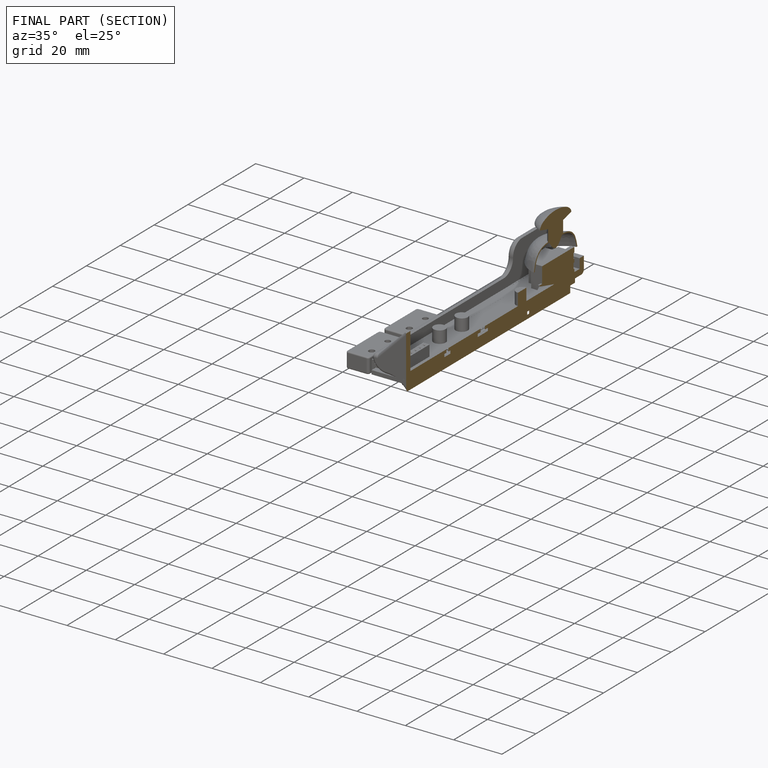
[diagram: finished part — half-section view (interior)]
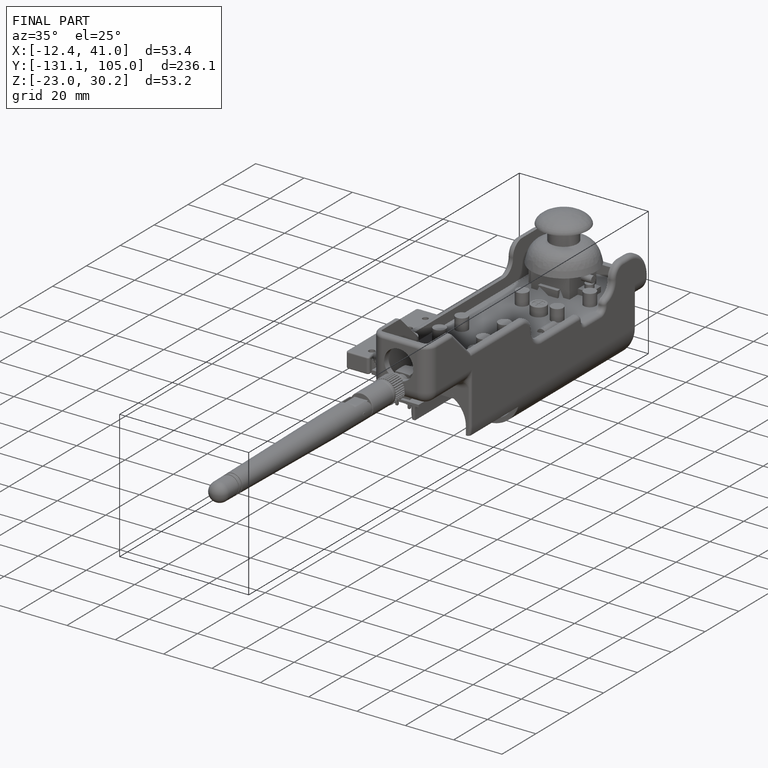
[diagram: finished part — iso view with bounding-box wireframe]
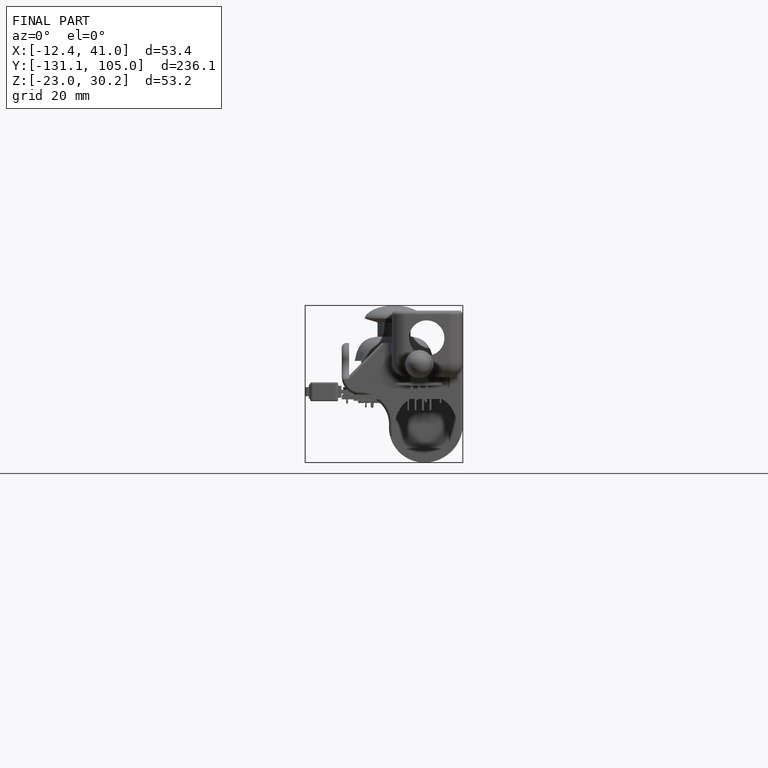
[diagram: finished part — front view with bounding-box wireframe]
